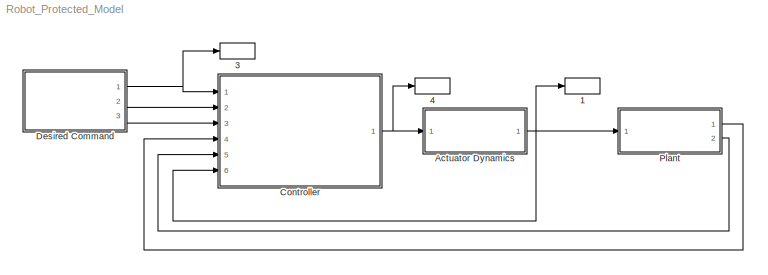
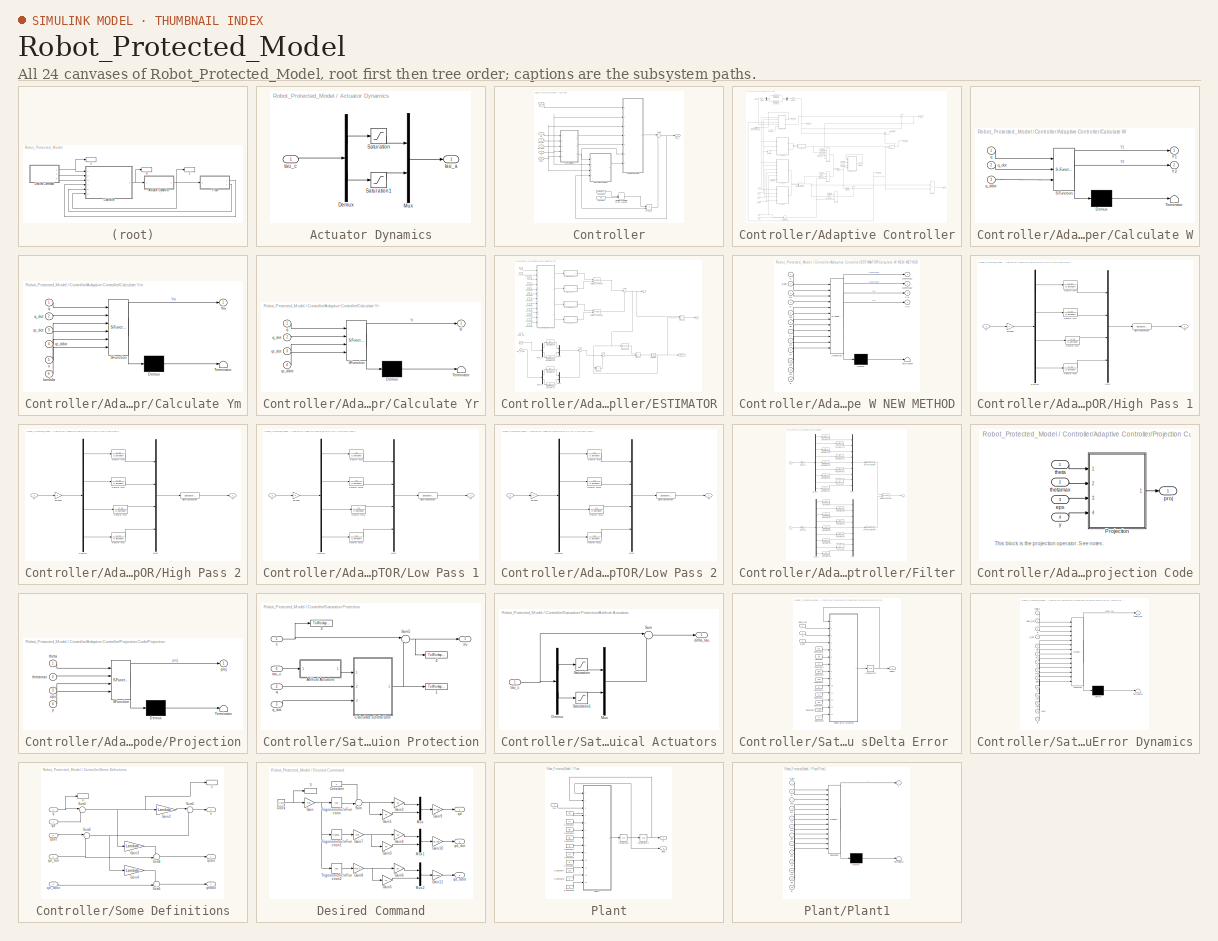
[diagram: thumbnail index - all 24 canvases of the model, root first then tree order]
MODEL Robot_Protected_Model
KIND model
BLOCK [ToWorkspace] 1
  MaxDataPoints = inf
  Ports = [1]
  SID = 77
  SampleTime = -1
  SaveFormat = Structure With Time
  VariableName = taua
BLOCK [ToWorkspace] 3
  MaxDataPoints = inf
  Ports = [1]
  SID = 99
  SampleTime = -1
  SaveFormat = Structure With Time
  VariableName = qd
BLOCK [ToWorkspace] 4
  MaxDataPoints = inf
  Ports = [1]
  SID = 100
  SampleTime = -1
  SaveFormat = Structure With Time
  VariableName = tauc
BLOCK [SubSystem] Actuator Dynamics
  FunctionWithSeparateData = off
  MaskHideContents = off
  MinAlgLoopOccurrences = off
  Opaque = off
  Ports = [1, 1]
  PropExecContextOutsideSubsystem = off
  RTWSystemCode = Auto
  RequestExecContextInheritance = off
  SID = 102
BLOCK [Demux] Actuator Dynamics/Demux
  DisplayOption = bar
  Outputs = 2
  Ports = [1, 2]
  SID = 104
BLOCK [Mux] Actuator Dynamics/Mux
  DisplayOption = bar
  Inputs = 2
  Ports = [2, 1]
  SID = 105
BLOCK [Saturate] Actuator Dynamics/Saturation
  InputPortMap = u0
  LowerLimit = -tau1lim
  Ports = [1, 1]
  SID = 106
  UpperLimit = tau1lim
  ZeroCross = off
BLOCK [Saturate] Actuator Dynamics/Saturation1
  InputPortMap = u0
  LowerLimit = -tau2lim
  Ports = [1, 1]
  SID = 107
  UpperLimit = tau2lim
  ZeroCross = off
BLOCK [Outport] Actuator Dynamics/tau_a
  IconDisplay = Port number
  SID = 108
BLOCK [Inport] Actuator Dynamics/tau_c
  IconDisplay = Port number
  SID = 103
BLOCK [SubSystem] Controller
  FunctionWithSeparateData = off
  MaskHideContents = off
  MinAlgLoopOccurrences = off
  Opaque = off
  Ports = [6, 1]
  PropExecContextOutsideSubsystem = off
  RTWSystemCode = Auto
  RequestExecContextInheritance = off
  SID = 82
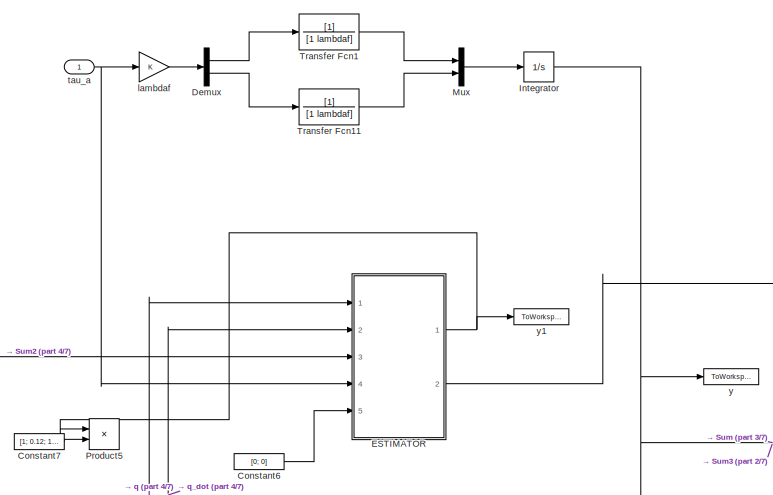
[diagram: Controller/Adaptive Controller - part 1/7, top left region]
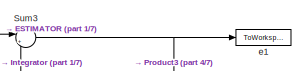
[diagram: Controller/Adaptive Controller - part 2/7, top right region]
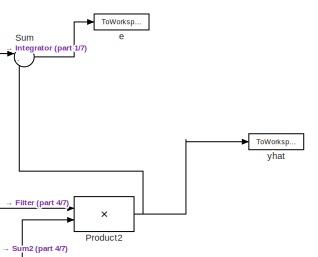
[diagram: Controller/Adaptive Controller - part 3/7, middle right region]
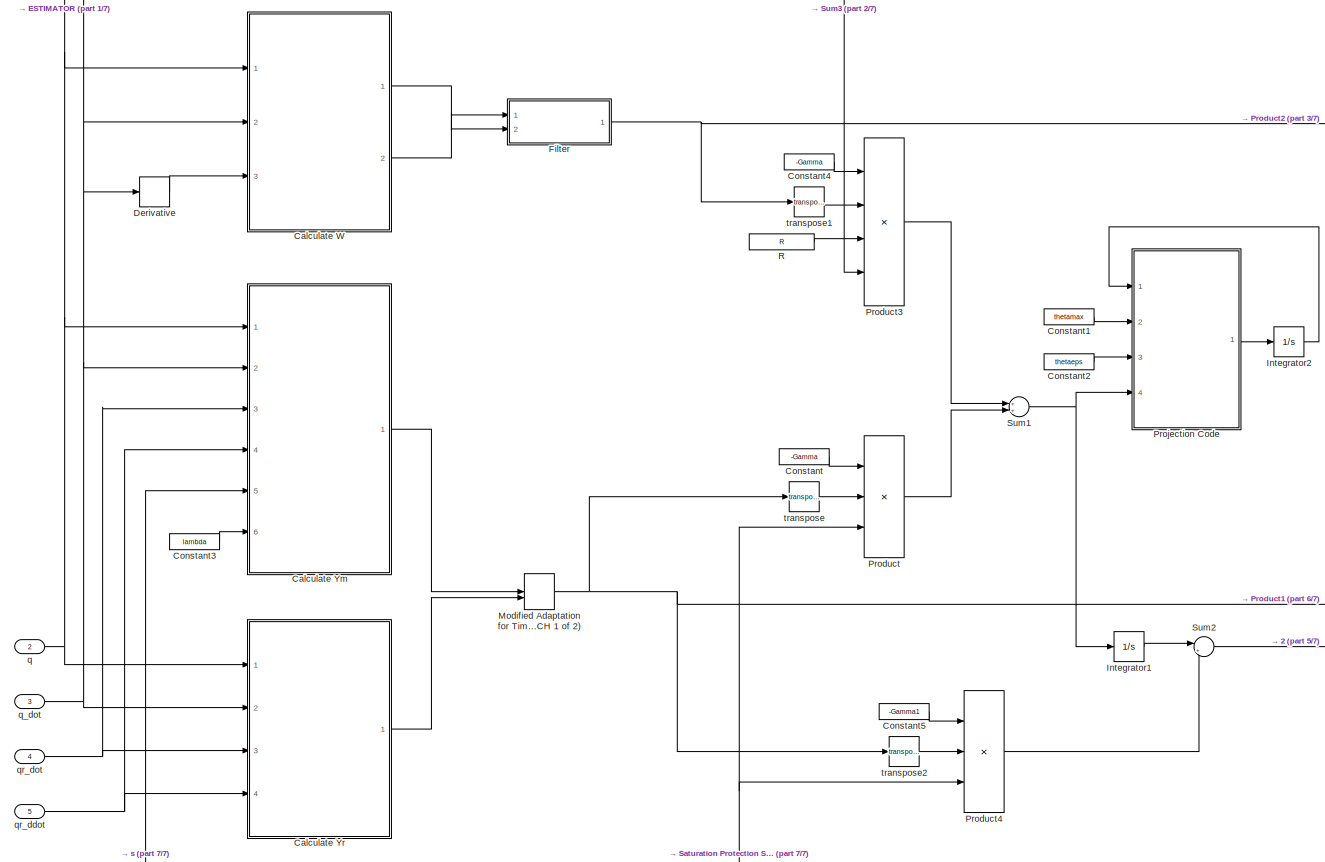
[diagram: Controller/Adaptive Controller - part 4/7, middle left region]
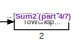
[diagram: Controller/Adaptive Controller - part 5/7, central region]
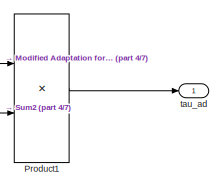
[diagram: Controller/Adaptive Controller - part 6/7, bottom right region]
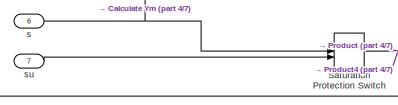
[diagram: Controller/Adaptive Controller - part 7/7, bottom left region]
BLOCK [SubSystem] Controller/Adaptive Controller
  FunctionWithSeparateData = off
  MaskHideContents = off
  MinAlgLoopOccurrences = off
  Opaque = off
  Ports = [7, 1]
  PropExecContextOutsideSubsystem = off
  RTWSystemCode = Auto
  RequestExecContextInheritance = off
  SID = 168
BLOCK [ToWorkspace] Controller/Adaptive Controller/2
  MaxDataPoints = inf
  Ports = [1]
  SID = 98
  SampleTime = -1
  SaveFormat = Structure With Time
  VariableName = theta_hat
BLOCK [SubSystem] Controller/Adaptive Controller/Calculate W
  ErrorFcn = Stateflow.Translate.translate
  FunctionWithSeparateData = off
  MaskHideContents = off
  MinAlgLoopOccurrences = off
  Opaque = off
  PermitHierarchicalResolution = ExplicitOnly
  Ports = [3, 2]
  PropExecContextOutsideSubsystem = off
  RTWSystemCode = Auto
  RequestExecContextInheritance = off
  SFBlockType = MATLAB Function
  SID = 196
  TreatAsAtomicUnit = on
BLOCK [Demux] Controller/Adaptive Controller/Calculate W/ Demux 
  Outputs = 1
  Ports = [1, 1]
  SID = 196::27
BLOCK [S-Function] Controller/Adaptive Controller/Calculate W/ SFunction 
  EnableBusSupport = on
  FunctionName = sf_sfun
  PortCounts = [3 3]
  Ports = [3, 3]
  SID = 196::26
  Tag = Stateflow S-Function Robot_Protected_Model 7
BLOCK [Terminator] Controller/Adaptive Controller/Calculate W/ Terminator 
  SID = 196::29
BLOCK [Outport] Controller/Adaptive Controller/Calculate W/Y1
  IconDisplay = Port number
  SID = 196::5
BLOCK [Outport] Controller/Adaptive Controller/Calculate W/Y2
  IconDisplay = Port number
  Port = 2
  SID = 196::31
BLOCK [Inport] Controller/Adaptive Controller/Calculate W/q
  IconDisplay = Port number
  SID = 196::1
BLOCK [Inport] Controller/Adaptive Controller/Calculate W/q_ddot
  IconDisplay = Port number
  Port = 3
  SID = 196::30
BLOCK [Inport] Controller/Adaptive Controller/Calculate W/q_dot
  IconDisplay = Port number
  Port = 2
  SID = 196::18
BLOCK [SubSystem] Controller/Adaptive Controller/Calculate Ym
  ErrorFcn = Stateflow.Translate.translate
  FunctionWithSeparateData = off
  MaskHideContents = off
  MinAlgLoopOccurrences = off
  Opaque = off
  PermitHierarchicalResolution = ExplicitOnly
  Ports = [6, 1]
  PropExecContextOutsideSubsystem = off
  RTWSystemCode = Auto
  RequestExecContextInheritance = off
  SFBlockType = MATLAB Function
  SID = 185
  TreatAsAtomicUnit = on
BLOCK [Demux] Controller/Adaptive Controller/Calculate Ym/ Demux 
  Outputs = 1
  Ports = [1, 1]
  SID = 185::27
BLOCK [S-Function] Controller/Adaptive Controller/Calculate Ym/ SFunction 
  EnableBusSupport = on
  FunctionName = sf_sfun
  PortCounts = [6 2]
  Ports = [6, 2]
  SID = 185::26
  Tag = Stateflow S-Function Robot_Protected_Model 5
BLOCK [Terminator] Controller/Adaptive Controller/Calculate Ym/ Terminator 
  SID = 185::29
BLOCK [Outport] Controller/Adaptive Controller/Calculate Ym/Ym
  IconDisplay = Port number
  SID = 185::5
BLOCK [Inport] Controller/Adaptive Controller/Calculate Ym/lambda
  IconDisplay = Port number
  Port = 6
  SID = 185::31
BLOCK [Inport] Controller/Adaptive Controller/Calculate Ym/q
  IconDisplay = Port number
  SID = 185::1
BLOCK [Inport] Controller/Adaptive Controller/Calculate Ym/q_dot
  IconDisplay = Port number
  Port = 2
  SID = 185::18
BLOCK [Inport] Controller/Adaptive Controller/Calculate Ym/qr_ddot
  IconDisplay = Port number
  Port = 4
  SID = 185::21
BLOCK [Inport] Controller/Adaptive Controller/Calculate Ym/qr_dot
  IconDisplay = Port number
  Port = 3
  SID = 185::20
BLOCK [Inport] Controller/Adaptive Controller/Calculate Ym/s
  IconDisplay = Port number
  Port = 5
  SID = 185::30
BLOCK [SubSystem] Controller/Adaptive Controller/Calculate Yr
  ErrorFcn = Stateflow.Translate.translate
  FunctionWithSeparateData = off
  MaskHideContents = off
  MinAlgLoopOccurrences = off
  Opaque = off
  PermitHierarchicalResolution = ExplicitOnly
  Ports = [4, 1]
  PropExecContextOutsideSubsystem = off
  RTWSystemCode = Auto
  RequestExecContextInheritance = off
  SFBlockType = MATLAB Function
  SID = 13
  TreatAsAtomicUnit = on
BLOCK [Demux] Controller/Adaptive Controller/Calculate Yr/ Demux 
  Outputs = 1
  Ports = [1, 1]
  SID = 13::27
BLOCK [S-Function] Controller/Adaptive Controller/Calculate Yr/ SFunction 
  EnableBusSupport = on
  FunctionName = sf_sfun
  PortCounts = [4 2]
  Ports = [4, 2]
  SID = 13::26
  Tag = Stateflow S-Function Robot_Protected_Model 1
BLOCK [Terminator] Controller/Adaptive Controller/Calculate Yr/ Terminator 
  SID = 13::29
BLOCK [Outport] Controller/Adaptive Controller/Calculate Yr/Yr
  IconDisplay = Port number
  SID = 13::5
BLOCK [Inport] Controller/Adaptive Controller/Calculate Yr/q
  IconDisplay = Port number
  SID = 13::1
BLOCK [Inport] Controller/Adaptive Controller/Calculate Yr/q_dot
  IconDisplay = Port number
  Port = 2
  SID = 13::18
BLOCK [Inport] Controller/Adaptive Controller/Calculate Yr/qr_ddot
  IconDisplay = Port number
  Port = 4
  SID = 13::21
BLOCK [Inport] Controller/Adaptive Controller/Calculate Yr/qr_dot
  IconDisplay = Port number
  Port = 3
  SID = 13::20
BLOCK [Constant] Controller/Adaptive Controller/Constant
  SID = 46
  Value = -Gamma
BLOCK [Constant] Controller/Adaptive Controller/Constant1
  SID = 160
  Value = thetamax
BLOCK [Constant] Controller/Adaptive Controller/Constant2
  SID = 161
  Value = thetaeps
BLOCK [Constant] Controller/Adaptive Controller/Constant3
  SID = 186
  Value = lambda
BLOCK [Constant] Controller/Adaptive Controller/Constant4
  SID = 240
  Value = -Gamma
BLOCK [Constant] Controller/Adaptive Controller/Constant5
  SID = 248
  Value = -Gamma1
BLOCK [Constant] Controller/Adaptive Controller/Constant6
  SID = 413
  Value = [0; 0]
BLOCK [Constant] Controller/Adaptive Controller/Constant7
  SID = 416
  Value = [1; 0.12; 1; 1]
BLOCK [Demux] Controller/Adaptive Controller/Demux
  DisplayOption = bar
  Outputs = 2
  Ports = [1, 2]
  SID = 233
BLOCK [Derivative] Controller/Adaptive Controller/Derivative
  SID = 197
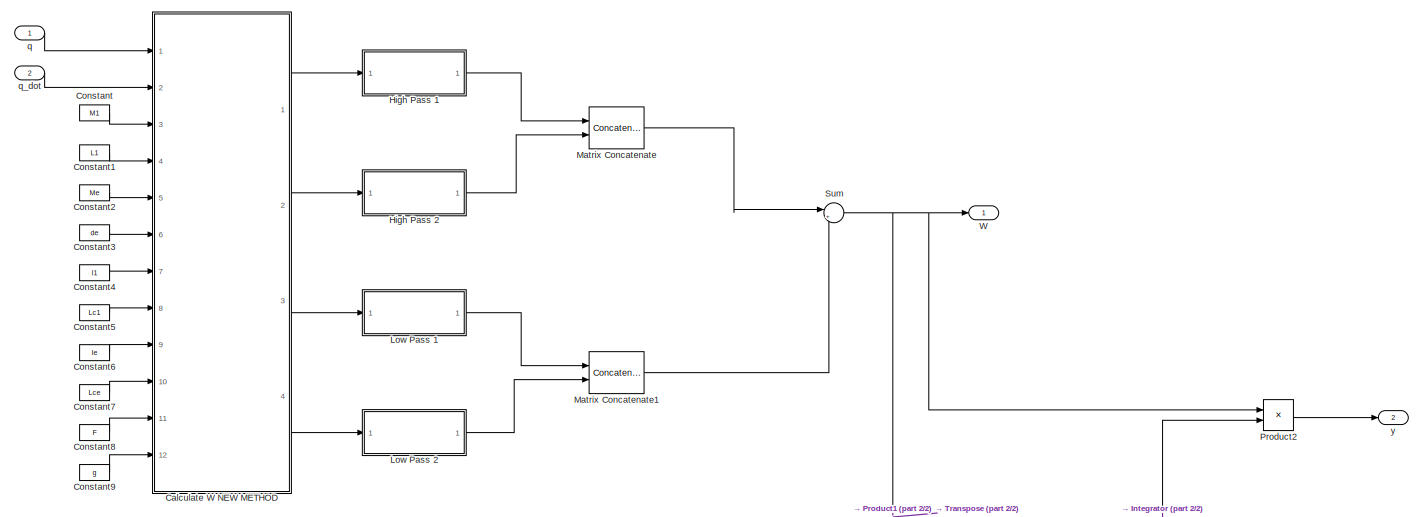
[diagram: Controller/Adaptive Controller/ESTIMATOR - part 1/2, full width, top band]
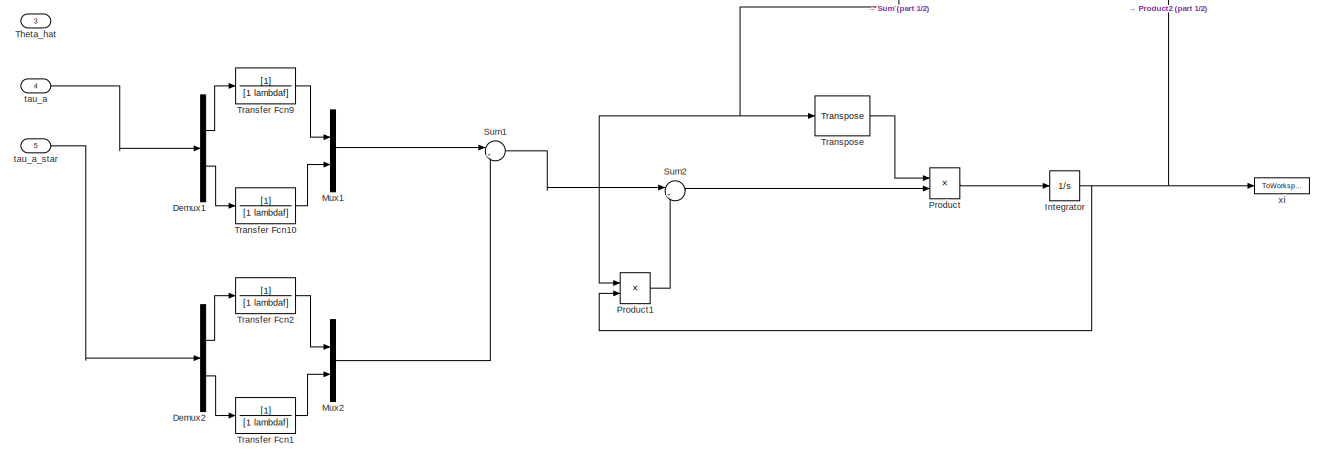
[diagram: Controller/Adaptive Controller/ESTIMATOR - part 2/2, full width, bottom band]
BLOCK [SubSystem] Controller/Adaptive Controller/ESTIMATOR
  FunctionWithSeparateData = off
  MaskHideContents = off
  MinAlgLoopOccurrences = off
  Opaque = off
  Ports = [5, 2]
  PropExecContextOutsideSubsystem = off
  RTWSystemCode = Auto
  RequestExecContextInheritance = off
  SID = 263
BLOCK [SubSystem] Controller/Adaptive Controller/ESTIMATOR/Calculate W NEW METHOD
  ErrorFcn = Stateflow.Translate.translate
  FunctionWithSeparateData = off
  MaskHideContents = off
  MinAlgLoopOccurrences = off
  Opaque = off
  PermitHierarchicalResolution = ExplicitOnly
  Ports = [12, 4]
  PropExecContextOutsideSubsystem = off
  RTWSystemCode = Auto
  RequestExecContextInheritance = off
  SFBlockType = MATLAB Function
  SID = 262
  TreatAsAtomicUnit = on
BLOCK [Demux] Controller/Adaptive Controller/ESTIMATOR/Calculate W NEW METHOD/ Demux 
  Outputs = 1
  Ports = [1, 1]
  SID = 262::27
BLOCK [S-Function] Controller/Adaptive Controller/ESTIMATOR/Calculate W NEW METHOD/ SFunction 
  EnableBusSupport = on
  FunctionName = sf_sfun
  PortCounts = [12 5]
  Ports = [12, 5]
  SID = 262::26
  Tag = Stateflow S-Function Robot_Protected_Model 6
BLOCK [Terminator] Controller/Adaptive Controller/ESTIMATOR/Calculate W NEW METHOD/ Terminator 
  SID = 262::29
BLOCK [Inport] Controller/Adaptive Controller/ESTIMATOR/Calculate W NEW METHOD/Fd
  IconDisplay = Port number
  Port = 11
  SID = 262::43
BLOCK [Outport] Controller/Adaptive Controller/ESTIMATOR/Calculate W NEW METHOD/Gammaz1
  IconDisplay = Port number
  SID = 262::5
BLOCK [Outport] Controller/Adaptive Controller/ESTIMATOR/Calculate W NEW METHOD/Gammaz2
  IconDisplay = Port number
  Port = 2
  SID = 262::31
BLOCK [Inport] Controller/Adaptive Controller/ESTIMATOR/Calculate W NEW METHOD/I1
  IconDisplay = Port number
  Port = 7
  SID = 262::39
BLOCK [Inport] Controller/Adaptive Controller/ESTIMATOR/Calculate W NEW METHOD/Ie
  IconDisplay = Port number
  Port = 9
  SID = 262::41
BLOCK [Inport] Controller/Adaptive Controller/ESTIMATOR/Calculate W NEW METHOD/L1
  IconDisplay = Port number
  Port = 4
  SID = 262::36
BLOCK [Inport] Controller/Adaptive Controller/ESTIMATOR/Calculate W NEW METHOD/Lc1
  IconDisplay = Port number
  Port = 8
  SID = 262::40
BLOCK [Inport] Controller/Adaptive Controller/ESTIMATOR/Calculate W NEW METHOD/Lce
  IconDisplay = Port number
  Port = 10
  SID = 262::42
BLOCK [Inport] Controller/Adaptive Controller/ESTIMATOR/Calculate W NEW METHOD/M1
  IconDisplay = Port number
  Port = 3
  SID = 262::35
BLOCK [Inport] Controller/Adaptive Controller/ESTIMATOR/Calculate W NEW METHOD/Me
  IconDisplay = Port number
  Port = 5
  SID = 262::37
BLOCK [Outport] Controller/Adaptive Controller/ESTIMATOR/Calculate W NEW METHOD/XI1
  IconDisplay = Port number
  Port = 3
  SID = 262::32
BLOCK [Outport] Controller/Adaptive Controller/ESTIMATOR/Calculate W NEW METHOD/XI2
  IconDisplay = Port number
  Port = 4
  SID = 262::45
BLOCK [Inport] Controller/Adaptive Controller/ESTIMATOR/Calculate W NEW METHOD/de
  IconDisplay = Port number
  Port = 6
  SID = 262::38
BLOCK [Inport] Controller/Adaptive Controller/ESTIMATOR/Calculate W NEW METHOD/g
  IconDisplay = Port number
  Port = 12
  SID = 262::44
BLOCK [Inport] Controller/Adaptive Controller/ESTIMATOR/Calculate W NEW METHOD/q
  IconDisplay = Port number
  SID = 262::1
BLOCK [Inport] Controller/Adaptive Controller/ESTIMATOR/Calculate W NEW METHOD/q_dot
  IconDisplay = Port number
  Port = 2
  SID = 262::18
BLOCK [Constant] Controller/Adaptive Controller/ESTIMATOR/Constant
  SID = 266
  Value = M1
BLOCK [Constant] Controller/Adaptive Controller/ESTIMATOR/Constant1
  SID = 267
  Value = L1
BLOCK [Constant] Controller/Adaptive Controller/ESTIMATOR/Constant2
  SID = 268
  Value = Me
BLOCK [Constant] Controller/Adaptive Controller/ESTIMATOR/Constant3
  SID = 269
  Value = de
BLOCK [Constant] Controller/Adaptive Controller/ESTIMATOR/Constant4
  SID = 270
  Value = I1
BLOCK [Constant] Controller/Adaptive Controller/ESTIMATOR/Constant5
  SID = 271
  Value = Lc1
BLOCK [Constant] Controller/Adaptive Controller/ESTIMATOR/Constant6
  SID = 272
  Value = Ie
BLOCK [Constant] Controller/Adaptive Controller/ESTIMATOR/Constant7
  SID = 273
  Value = Lce
BLOCK [Constant] Controller/Adaptive Controller/ESTIMATOR/Constant8
  SID = 274
  Value = F
BLOCK [Constant] Controller/Adaptive Controller/ESTIMATOR/Constant9
  SID = 275
  Value = g
BLOCK [Demux] Controller/Adaptive Controller/ESTIMATOR/Demux1
  DisplayOption = bar
  Outputs = 2
  Ports = [1, 2]
  SID = 398
BLOCK [Demux] Controller/Adaptive Controller/ESTIMATOR/Demux2
  DisplayOption = bar
  Outputs = 2
  Ports = [1, 2]
  SID = 402
BLOCK [SubSystem] Controller/Adaptive Controller/ESTIMATOR/High Pass 1
  FunctionWithSeparateData = off
  MaskHideContents = off
  MinAlgLoopOccurrences = off
  Opaque = off
  Ports = [1, 1]
  PropExecContextOutsideSubsystem = off
  RTWSystemCode = Auto
  RequestExecContextInheritance = off
  SID = 345
BLOCK [Demux] Controller/Adaptive Controller/ESTIMATOR/High Pass 1/Demux1
  DisplayOption = bar
  Ports = [1, 4]
  SID = 347
BLOCK [Mux] Controller/Adaptive Controller/ESTIMATOR/High Pass 1/Mux1
  DisplayOption = bar
  Ports = [4, 1]
  SID = 348
BLOCK [SignalSpecification] Controller/Adaptive Controller/ESTIMATOR/High Pass 1/Signal Specification
  Dimensions = [1,4]
  SID = 349
BLOCK [TransferFcn] Controller/Adaptive Controller/ESTIMATOR/High Pass 1/Transfer Fcn1
  Denominator = [1 lambdaf]
  Numerator = [1 0]
  SID = 378
BLOCK [TransferFcn] Controller/Adaptive Controller/ESTIMATOR/High Pass 1/Transfer Fcn2
  Denominator = [1 lambdaf]
  Numerator = [1 0]
  SID = 379
BLOCK [TransferFcn] Controller/Adaptive Controller/ESTIMATOR/High Pass 1/Transfer Fcn3
  Denominator = [1 lambdaf]
  Numerator = [1 0]
  SID = 380
BLOCK [TransferFcn] Controller/Adaptive Controller/ESTIMATOR/High Pass 1/Transfer Fcn9
  Denominator = [1 lambdaf]
  Numerator = [1 0]
  SID = 353
BLOCK [Outport] Controller/Adaptive Controller/ESTIMATOR/High Pass 1/W
  IconDisplay = Port number
  SID = 355
BLOCK [Inport] Controller/Adaptive Controller/ESTIMATOR/High Pass 1/Y1
  IconDisplay = Port number
  SID = 346
BLOCK [Gain] Controller/Adaptive Controller/ESTIMATOR/High Pass 1/lambdaf
  OutDataTypeStr = Inherit: Inherit via internal rule
  ParamDataTypeStr = Inherit: Inherit via internal rule
  SID = 354
  SaturateOnIntegerOverflow = off
BLOCK [SubSystem] Controller/Adaptive Controller/ESTIMATOR/High Pass 2
  FunctionWithSeparateData = off
  MaskHideContents = off
  MinAlgLoopOccurrences = off
  Opaque = off
  Ports = [1, 1]
  PropExecContextOutsideSubsystem = off
  RTWSystemCode = Auto
  RequestExecContextInheritance = off
  SID = 381
BLOCK [Demux] Controller/Adaptive Controller/ESTIMATOR/High Pass 2/Demux1
  DisplayOption = bar
  Ports = [1, 4]
  SID = 383
BLOCK [Mux] Controller/Adaptive Controller/ESTIMATOR/High Pass 2/Mux1
  DisplayOption = bar
  Ports = [4, 1]
  SID = 384
BLOCK [SignalSpecification] Controller/Adaptive Controller/ESTIMATOR/High Pass 2/Signal Specification
  Dimensions = [1,4]
  SID = 385
BLOCK [TransferFcn] Controller/Adaptive Controller/ESTIMATOR/High Pass 2/Transfer Fcn1
  Denominator = [1 lambdaf]
  Numerator = [1 0]
  SID = 386
BLOCK [TransferFcn] Controller/Adaptive Controller/ESTIMATOR/High Pass 2/Transfer Fcn2
  Denominator = [1 lambdaf]
  Numerator = [1 0]
  SID = 387
BLOCK [TransferFcn] Controller/Adaptive Controller/ESTIMATOR/High Pass 2/Transfer Fcn3
  Denominator = [1 lambdaf]
  Numerator = [1 0]
  SID = 388
BLOCK [TransferFcn] Controller/Adaptive Controller/ESTIMATOR/High Pass 2/Transfer Fcn9
  Denominator = [1 lambdaf]
  Numerator = [1 0]
  SID = 389
BLOCK [Outport] Controller/Adaptive Controller/ESTIMATOR/High Pass 2/W
  IconDisplay = Port number
  SID = 391
BLOCK [Inport] Controller/Adaptive Controller/ESTIMATOR/High Pass 2/Y1
  IconDisplay = Port number
  SID = 382
BLOCK [Gain] Controller/Adaptive Controller/ESTIMATOR/High Pass 2/lambdaf
  OutDataTypeStr = Inherit: Inherit via internal rule
  ParamDataTypeStr = Inherit: Inherit via internal rule
  SID = 390
  SaturateOnIntegerOverflow = off
BLOCK [Integrator] Controller/Adaptive Controller/ESTIMATOR/Integrator
  InitialCondition = [0; 0; 0; 0]
  Ports = [1, 1]
  SID = 407
BLOCK [SubSystem] Controller/Adaptive Controller/ESTIMATOR/Low Pass 1
  FunctionWithSeparateData = off
  MaskHideContents = off
  MinAlgLoopOccurrences = off
  Opaque = off
  Ports = [1, 1]
  PropExecContextOutsideSubsystem = off
  RTWSystemCode = Auto
  RequestExecContextInheritance = off
  SID = 277
BLOCK [Demux] Controller/Adaptive Controller/ESTIMATOR/Low Pass 1/Demux1
  DisplayOption = bar
  Ports = [1, 4]
  SID = 281
BLOCK [Mux] Controller/Adaptive Controller/ESTIMATOR/Low Pass 1/Mux1
  DisplayOption = bar
  Ports = [4, 1]
  SID = 284
BLOCK [SignalSpecification] Controller/Adaptive Controller/ESTIMATOR/Low Pass 1/Signal Specification
  Dimensions = [1,4]
  SID = 285
BLOCK [TransferFcn] Controller/Adaptive Controller/ESTIMATOR/Low Pass 1/Transfer Fcn10
  Denominator = [1 lambdaf]
  SID = 289
BLOCK [TransferFcn] Controller/Adaptive Controller/ESTIMATOR/Low Pass 1/Transfer Fcn11
  Denominator = [1 lambdaf]
  SID = 290
BLOCK [TransferFcn] Controller/Adaptive Controller/ESTIMATOR/Low Pass 1/Transfer Fcn12
  Denominator = [1 lambdaf]
  SID = 291
BLOCK [TransferFcn] Controller/Adaptive Controller/ESTIMATOR/Low Pass 1/Transfer Fcn9
  Denominator = [1 lambdaf]
  SID = 304
BLOCK [Outport] Controller/Adaptive Controller/ESTIMATOR/Low Pass 1/W
  IconDisplay = Port number
  SID = 307
BLOCK [Inport] Controller/Adaptive Controller/ESTIMATOR/Low Pass 1/Y1
  IconDisplay = Port number
  SID = 278
BLOCK [Gain] Controller/Adaptive Controller/ESTIMATOR/Low Pass 1/lambdaf
  OutDataTypeStr = Inherit: Inherit via internal rule
  ParamDataTypeStr = Inherit: Inherit via internal rule
  SID = 305
  SaturateOnIntegerOverflow = off
BLOCK [SubSystem] Controller/Adaptive Controller/ESTIMATOR/Low Pass 2
  FunctionWithSeparateData = off
  MaskHideContents = off
  MinAlgLoopOccurrences = off
  Opaque = off
  Ports = [1, 1]
  PropExecContextOutsideSubsystem = off
  RTWSystemCode = Auto
  RequestExecContextInheritance = off
  SID = 334
BLOCK [Demux] Controller/Adaptive Controller/ESTIMATOR/Low Pass 2/Demux1
  DisplayOption = bar
  Ports = [1, 4]
  SID = 336
BLOCK [Mux] Controller/Adaptive Controller/ESTIMATOR/Low Pass 2/Mux1
  DisplayOption = bar
  Ports = [4, 1]
  SID = 337
BLOCK [SignalSpecification] Controller/Adaptive Controller/ESTIMATOR/Low Pass 2/Signal Specification
  Dimensions = [1,4]
  SID = 338
BLOCK [TransferFcn] Controller/Adaptive Controller/ESTIMATOR/Low Pass 2/Transfer Fcn10
  Denominator = [1 lambdaf]
  SID = 339
BLOCK [TransferFcn] Controller/Adaptive Controller/ESTIMATOR/Low Pass 2/Transfer Fcn11
  Denominator = [1 lambdaf]
  SID = 340
BLOCK [TransferFcn] Controller/Adaptive Controller/ESTIMATOR/Low Pass 2/Transfer Fcn12
  Denominator = [1 lambdaf]
  SID = 341
BLOCK [TransferFcn] Controller/Adaptive Controller/ESTIMATOR/Low Pass 2/Transfer Fcn9
  Denominator = [1 lambdaf]
  SID = 342
BLOCK [Outport] Controller/Adaptive Controller/ESTIMATOR/Low Pass 2/W
  IconDisplay = Port number
  SID = 344
BLOCK [Inport] Controller/Adaptive Controller/ESTIMATOR/Low Pass 2/Y1
  IconDisplay = Port number
  SID = 335
BLOCK [Gain] Controller/Adaptive Controller/ESTIMATOR/Low Pass 2/lambdaf
  OutDataTypeStr = Inherit: Inherit via internal rule
  ParamDataTypeStr = Inherit: Inherit via internal rule
  SID = 343
  SaturateOnIntegerOverflow = off
BLOCK [Concatenate] Controller/Adaptive Controller/ESTIMATOR/Matrix Concatenate
  Mode = Multidimensional array
  Ports = [2, 1]
  SID = 282
BLOCK [Concatenate] Controller/Adaptive Controller/ESTIMATOR/Matrix Concatenate1
  Mode = Multidimensional array
  Ports = [2, 1]
  SID = 392
BLOCK [Mux] Controller/Adaptive Controller/ESTIMATOR/Mux1
  DisplayOption = bar
  Inputs = 2
  Ports = [2, 1]
  SID = 399
BLOCK [Mux] Controller/Adaptive Controller/ESTIMATOR/Mux2
  DisplayOption = bar
  Inputs = 2
  Ports = [2, 1]
  SID = 403
BLOCK [Product] Controller/Adaptive Controller/ESTIMATOR/Product
  InputSameDT = off
  Multiplication = Matrix(*)
  OutDataTypeStr = Inherit: Inherit via internal rule
  Ports = [2, 1]
  SID = 409
  SaturateOnIntegerOverflow = off
BLOCK [Product] Controller/Adaptive Controller/ESTIMATOR/Product1
  InputSameDT = off
  Multiplication = Matrix(*)
  OutDataTypeStr = Inherit: Inherit via internal rule
  Ports = [2, 1]
  SID = 410
  SaturateOnIntegerOverflow = off
BLOCK [Product] Controller/Adaptive Controller/ESTIMATOR/Product2
  InputSameDT = off
  Multiplication = Matrix(*)
  OutDataTypeStr = Inherit: Inherit via internal rule
  Ports = [2, 1]
  SID = 417
  SaturateOnIntegerOverflow = off
BLOCK [Sum] Controller/Adaptive Controller/ESTIMATOR/Sum
  IconShape = round
  InputSameDT = off
  Inputs = |+-
  OutDataTypeStr = Inherit: Inherit via internal rule
  Ports = [2, 1]
  SID = 393
  SaturateOnIntegerOverflow = off
BLOCK [Sum] Controller/Adaptive Controller/ESTIMATOR/Sum1
  IconShape = round
  InputSameDT = off
  Inputs = |+-
  OutDataTypeStr = Inherit: Inherit via internal rule
  Ports = [2, 1]
  SID = 406
  SaturateOnIntegerOverflow = off
BLOCK [Sum] Controller/Adaptive Controller/ESTIMATOR/Sum2
  IconShape = round
  InputSameDT = off
  Inputs = |+-
  OutDataTypeStr = Inherit: Inherit via internal rule
  Ports = [2, 1]
  SID = 411
  SaturateOnIntegerOverflow = off
BLOCK [Inport] Controller/Adaptive Controller/ESTIMATOR/Theta_hat
  IconDisplay = Port number
  Port = 3
  SID = 395
BLOCK [TransferFcn] Controller/Adaptive Controller/ESTIMATOR/Transfer Fcn1
  Denominator = [1 lambdaf]
  SID = 404
BLOCK [TransferFcn] Controller/Adaptive Controller/ESTIMATOR/Transfer Fcn10
  Denominator = [1 lambdaf]
  SID = 400
BLOCK [TransferFcn] Controller/Adaptive Controller/ESTIMATOR/Transfer Fcn2
  Denominator = [1 lambdaf]
  SID = 405
BLOCK [TransferFcn] Controller/Adaptive Controller/ESTIMATOR/Transfer Fcn9
  Denominator = [1 lambdaf]
  SID = 401
BLOCK [Reference] Controller/Adaptive Controller/ESTIMATOR/Transpose  REF=dspmtrx3/Transpose
  Hermitian = off
  Ports = [1, 1]
  SID = 408
  SourceBlock = dspmtrx3/Transpose
  SourceType = Transpose
  overflowFlag = off
BLOCK [Outport] Controller/Adaptive Controller/ESTIMATOR/W
  IconDisplay = Port number
  SID = 265
BLOCK [Inport] Controller/Adaptive Controller/ESTIMATOR/q
  IconDisplay = Port number
  SID = 264
BLOCK [Inport] Controller/Adaptive Controller/ESTIMATOR/q_dot
  IconDisplay = Port number
  Port = 2
  SID = 276
BLOCK [Inport] Controller/Adaptive Controller/ESTIMATOR/tau_a
  IconDisplay = Port number
  Port = 4
  SID = 396
BLOCK [Inport] Controller/Adaptive Controller/ESTIMATOR/tau_a_star
  IconDisplay = Port number
  Port = 5
  SID = 397
BLOCK [ToWorkspace] Controller/Adaptive Controller/ESTIMATOR/xi
  MaxDataPoints = inf
  Ports = [1]
  SID = 412
  SampleTime = -1
  SaveFormat = Structure With Time
  VariableName = xi
BLOCK [Outport] Controller/Adaptive Controller/ESTIMATOR/y
  IconDisplay = Port number
  Port = 2
  SID = 418
BLOCK [SubSystem] Controller/Adaptive Controller/Filter
  FunctionWithSeparateData = off
  MaskHideContents = off
  MinAlgLoopOccurrences = off
  Opaque = off
  Ports = [2, 1]
  PropExecContextOutsideSubsystem = off
  RTWSystemCode = Auto
  RequestExecContextInheritance = off
  SID = 199
BLOCK [Demux] Controller/Adaptive Controller/Filter/Demux
  DisplayOption = bar
  Outputs = 9
  Ports = [1, 9]
  SID = 203
BLOCK [Demux] Controller/Adaptive Controller/Filter/Demux1
  DisplayOption = bar
  Outputs = 9
  Ports = [1, 9]
  SID = 213
BLOCK [Concatenate] Controller/Adaptive Controller/Filter/Matrix Concatenate
  Mode = Multidimensional array
  Ports = [2, 1]
  SID = 224
BLOCK [Mux] Controller/Adaptive Controller/Filter/Mux
  DisplayOption = bar
  Inputs = 9
  Ports = [9, 1]
  SID = 202
BLOCK [Mux] Controller/Adaptive Controller/Filter/Mux1
  DisplayOption = bar
  Inputs = 9
  Ports = [9, 1]
  SID = 214
BLOCK [SignalSpecification] Controller/Adaptive Controller/Filter/Signal Specification
  Dimensions = [1,9]
  SID = 225
BLOCK [SignalSpecification] Controller/Adaptive Controller/Filter/Signal Specification1
  Dimensions = [1,9]
  SID = 226
BLOCK [TransferFcn] Controller/Adaptive Controller/Filter/Transfer Fcn
  Denominator = [1 lambdaf]
  SID = 198
BLOCK [TransferFcn] Controller/Adaptive Controller/Filter/Transfer Fcn1
  Denominator = [1 lambdaf]
  SID = 205
BLOCK [TransferFcn] Controller/Adaptive Controller/Filter/Transfer Fcn10
  Denominator = [1 lambdaf]
  SID = 216
BLOCK [TransferFcn] Controller/Adaptive Controller/Filter/Transfer Fcn11
  Denominator = [1 lambdaf]
  SID = 217
BLOCK [TransferFcn] Controller/Adaptive Controller/Filter/Transfer Fcn12
  Denominator = [1 lambdaf]
  SID = 218
BLOCK [TransferFcn] Controller/Adaptive Controller/Filter/Transfer Fcn13
  Denominator = [1 lambdaf]
  SID = 219
BLOCK [TransferFcn] Controller/Adaptive Controller/Filter/Transfer Fcn14
  Denominator = [1 lambdaf]
  SID = 220
BLOCK [TransferFcn] Controller/Adaptive Controller/Filter/Transfer Fcn15
  Denominator = [1 lambdaf]
  SID = 221
BLOCK [TransferFcn] Controller/Adaptive Controller/Filter/Transfer Fcn16
  Denominator = [1 lambdaf]
  SID = 222
BLOCK [TransferFcn] Controller/Adaptive Controller/Filter/Transfer Fcn17
  Denominator = [1 lambdaf]
  SID = 223
BLOCK [TransferFcn] Controller/Adaptive Controller/Filter/Transfer Fcn2
  Denominator = [1 lambdaf]
  SID = 206
BLOCK [TransferFcn] Controller/Adaptive Controller/Filter/Transfer Fcn3
  Denominator = [1 lambdaf]
  SID = 207
BLOCK [TransferFcn] Controller/Adaptive Controller/Filter/Transfer Fcn4
  Denominator = [1 lambdaf]
  SID = 208
BLOCK [TransferFcn] Controller/Adaptive Controller/Filter/Transfer Fcn5
  Denominator = [1 lambdaf]
  SID = 209
BLOCK [TransferFcn] Controller/Adaptive Controller/Filter/Transfer Fcn6
  Denominator = [1 lambdaf]
  SID = 210
BLOCK [TransferFcn] Controller/Adaptive Controller/Filter/Transfer Fcn7
  Denominator = [1 lambdaf]
  SID = 211
BLOCK [TransferFcn] Controller/Adaptive Controller/Filter/Transfer Fcn8
  Denominator = [1 lambdaf]
  SID = 212
BLOCK [TransferFcn] Controller/Adaptive Controller/Filter/Transfer Fcn9
  Denominator = [1 lambdaf]
  SID = 215
BLOCK [Outport] Controller/Adaptive Controller/Filter/W
  IconDisplay = Port number
  SID = 201
BLOCK [Inport] Controller/Adaptive Controller/Filter/Y1
  IconDisplay = Port number
  SID = 200
BLOCK [Inport] Controller/Adaptive Controller/Filter/Y2
  IconDisplay = Port number
  Port = 2
  SID = 204
BLOCK [Gain] Controller/Adaptive Controller/Filter/lambdaf
  Gain = lambdaf
  OutDataTypeStr = Inherit: Inherit via internal rule
  ParamDataTypeStr = Inherit: Inherit via internal rule
  SID = 245
  SaturateOnIntegerOverflow = off
BLOCK [Gain] Controller/Adaptive Controller/Filter/lambdaf1
  Gain = lambdaf
  OutDataTypeStr = Inherit: Inherit via internal rule
  ParamDataTypeStr = Inherit: Inherit via internal rule
  SID = 246
  SaturateOnIntegerOverflow = off
BLOCK [Integrator] Controller/Adaptive Controller/Integrator
  InitialCondition = [0; 0]
  Ports = [1, 1]
  SID = 230
BLOCK [Integrator] Controller/Adaptive Controller/Integrator1
  InitialCondition = initial_theta
  Ports = [1, 1]
  SID = 239
BLOCK [Integrator] Controller/Adaptive Controller/Integrator2
  InitialCondition = initial_theta
  Ports = [1, 1]
  SID = 49
BLOCK [ManualSwitch] Controller/Adaptive Controller/Modified Adaptation for Time Varying KD\n(SWITCH 1 of 2)
  CurrentSetting = 0
  SID = 187
BLOCK [Mux] Controller/Adaptive Controller/Mux
  DisplayOption = bar
  Inputs = 2
  Ports = [2, 1]
  SID = 232
BLOCK [Product] Controller/Adaptive Controller/Product
  InputSameDT = off
  Inputs = 3
  Multiplication = Matrix(*)
  OutDataTypeStr = Inherit: Inherit via internal rule
  Ports = [3, 1]
  SID = 47
  SaturateOnIntegerOverflow = off
BLOCK [Product] Controller/Adaptive Controller/Product1
  InputSameDT = off
  Multiplication = Matrix(*)
  OutDataTypeStr = Inherit: Inherit via internal rule
  Ports = [2, 1]
  SID = 50
  SaturateOnIntegerOverflow = off
BLOCK [Product] Controller/Adaptive Controller/Product2
  InputSameDT = off
  Multiplication = Matrix(*)
  OutDataTypeStr = Inherit: Inherit via internal rule
  Ports = [2, 1]
  SID = 234
  SaturateOnIntegerOverflow = off
BLOCK [Product] Controller/Adaptive Controller/Product3
  InputSameDT = off
  Inputs = 4
  Multiplication = Matrix(*)
  OutDataTypeStr = Inherit: Inherit via internal rule
  Ports = [4, 1]
  SID = 241
  SaturateOnIntegerOverflow = off
BLOCK [Product] Controller/Adaptive Controller/Product4
  InputSameDT = off
  Inputs = 3
  Multiplication = Matrix(*)
  OutDataTypeStr = Inherit: Inherit via internal rule
  Ports = [3, 1]
  SID = 249
  SaturateOnIntegerOverflow = off
BLOCK [Product] Controller/Adaptive Controller/Product5
  InputSameDT = off
  Multiplication = Matrix(*)
  OutDataTypeStr = Inherit: Inherit via internal rule
  Ports = [2, 1]
  SID = 415
  SaturateOnIntegerOverflow = off
BLOCK [SubSystem] Controller/Adaptive Controller/Projection Code
  FunctionWithSeparateData = off
  MaskHideContents = off
  MinAlgLoopOccurrences = off
  Opaque = off
  Ports = [4, 1]
  PropExecContextOutsideSubsystem = off
  RTWSystemCode = Auto
  RequestExecContextInheritance = off
  SID = 152
BLOCK [SubSystem] Controller/Adaptive Controller/Projection Code/Projection
  ErrorFcn = Stateflow.Translate.translate
  FunctionWithSeparateData = off
  MaskHideContents = off
  MinAlgLoopOccurrences = off
  Opaque = off
  PermitHierarchicalResolution = ExplicitOnly
  Ports = [4, 1]
  PropExecContextOutsideSubsystem = off
  RTWSystemCode = Auto
  RequestExecContextInheritance = off
  SFBlockType = MATLAB Function
  SID = 157
  TreatAsAtomicUnit = on
BLOCK [Demux] Controller/Adaptive Controller/Projection Code/Projection/ Demux 
  Outputs = 1
  Ports = [1, 1]
  SID = 157::35824
BLOCK [S-Function] Controller/Adaptive Controller/Projection Code/Projection/ SFunction 
  EnableBusSupport = on
  FunctionName = sf_sfun
  PortCounts = [4 2]
  Ports = [4, 2]
  SID = 157::35823
  Tag = Stateflow S-Function Robot_Protected_Model 3
BLOCK [Terminator] Controller/Adaptive Controller/Projection Code/Projection/ Terminator 
  SID = 157::35826
BLOCK [Inport] Controller/Adaptive Controller/Projection Code/Projection/eps
  IconDisplay = Port number
  Port = 3
  SID = 157::35648
BLOCK [Outport] Controller/Adaptive Controller/Projection Code/Projection/proj
  IconDisplay = Port number
  SID = 157::35653
BLOCK [Inport] Controller/Adaptive Controller/Projection Code/Projection/theta
  IconDisplay = Port number
  SID = 157::35646
BLOCK [Inport] Controller/Adaptive Controller/Projection Code/Projection/thetamax
  IconDisplay = Port number
  Port = 2
  SID = 157::35647
BLOCK [Inport] Controller/Adaptive Controller/Projection Code/Projection/y
  IconDisplay = Port number
  Port = 4
  SID = 157::35649
BLOCK [Inport] Controller/Adaptive Controller/Projection Code/eps
  IconDisplay = Port number
  Port = 3
  SID = 155
BLOCK [Outport] Controller/Adaptive Controller/Projection Code/proj
  IconDisplay = Port number
  SID = 158
BLOCK [Inport] Controller/Adaptive Controller/Projection Code/theta
  IconDisplay = Port number
  SID = 153
BLOCK [Inport] Controller/Adaptive Controller/Projection Code/thetamax
  IconDisplay = Port number
  Port = 2
  SID = 154
BLOCK [Inport] Controller/Adaptive Controller/Projection Code/y
  IconDisplay = Port number
  Port = 4
  SID = 156
BLOCK [Constant] Controller/Adaptive Controller/R
  SID = 243
  Value = R
BLOCK [ManualSwitch] Controller/Adaptive Controller/Saturation Protection Switch
  CurrentSetting = 0
  SID = 109
BLOCK [Sum] Controller/Adaptive Controller/Sum
  IconShape = round
  InputSameDT = off
  Inputs = |-+
  OutDataTypeStr = Inherit: Inherit via internal rule
  Ports = [2, 1]
  SID = 237
  SaturateOnIntegerOverflow = off
BLOCK [Sum] Controller/Adaptive Controller/Sum1
  InputSameDT = off
  OutDataTypeStr = Inherit: Inherit via internal rule
  Ports = [2, 1]
  SID = 244
  SaturateOnIntegerOverflow = off
BLOCK [Sum] Controller/Adaptive Controller/Sum2
  IconShape = round
  InputSameDT = off
  Inputs = |++
  OutDataTypeStr = Inherit: Inherit via internal rule
  Ports = [2, 1]
  SID = 251
  SaturateOnIntegerOverflow = off
BLOCK [Sum] Controller/Adaptive Controller/Sum3
  IconShape = round
  InputSameDT = off
  Inputs = |+-
  OutDataTypeStr = Inherit: Inherit via internal rule
  Ports = [2, 1]
  SID = 419
  SaturateOnIntegerOverflow = off
BLOCK [TransferFcn] Controller/Adaptive Controller/Transfer Fcn1
  Denominator = [1 lambdaf]
  SID = 231
BLOCK [TransferFcn] Controller/Adaptive Controller/Transfer Fcn11
  Denominator = [1 lambdaf]
  SID = 229
BLOCK [ToWorkspace] Controller/Adaptive Controller/e
  MaxDataPoints = inf
  Ports = [1]
  SID = 238
  SampleTime = -1
  SaveFormat = Structure With Time
  VariableName = e
BLOCK [ToWorkspace] Controller/Adaptive Controller/e1
  MaxDataPoints = inf
  Ports = [1]
  SID = 420
  SampleTime = -1
  SaveFormat = Structure With Time
  VariableName = e2
BLOCK [Gain] Controller/Adaptive Controller/lambdaf
  OutDataTypeStr = Inherit: Inherit via internal rule
  ParamDataTypeStr = Inherit: Inherit via internal rule
  SID = 247
  SaturateOnIntegerOverflow = off
BLOCK [Inport] Controller/Adaptive Controller/q
  IconDisplay = Port number
  Port = 2
  SID = 176
BLOCK [Inport] Controller/Adaptive Controller/q_dot
  IconDisplay = Port number
  Port = 3
  SID = 169
BLOCK [Inport] Controller/Adaptive Controller/qr_ddot
  IconDisplay = Port number
  Port = 5
  SID = 175
BLOCK [Inport] Controller/Adaptive Controller/qr_dot
  IconDisplay = Port number
  Port = 4
  SID = 174
BLOCK [Inport] Controller/Adaptive Controller/s
  IconDisplay = Port number
  Port = 6
  SID = 184
BLOCK [Inport] Controller/Adaptive Controller/su
  IconDisplay = Port number
  Port = 7
  SID = 177
BLOCK [Inport] Controller/Adaptive Controller/tau_a
  IconDisplay = Port number
  SID = 227
BLOCK [Outport] Controller/Adaptive Controller/tau_ad
  IconDisplay = Port number
  SID = 170
BLOCK [Math] Controller/Adaptive Controller/transpose
  Operator = transpose
  Ports = [1, 1]
  SID = 48
BLOCK [Math] Controller/Adaptive Controller/transpose1
  Operator = transpose
  Ports = [1, 1]
  SID = 242
BLOCK [Math] Controller/Adaptive Controller/transpose2
  Operator = transpose
  Ports = [1, 1]
  SID = 250
BLOCK [ToWorkspace] Controller/Adaptive Controller/y
  MaxDataPoints = inf
  Ports = [1]
  SID = 236
  SampleTime = -1
  SaveFormat = Structure With Time
  VariableName = Wtheta
BLOCK [ToWorkspace] Controller/Adaptive Controller/y1
  MaxDataPoints = inf
  Ports = [1]
  SID = 394
  SampleTime = -1
  SaveFormat = Structure With Time
  VariableName = W
BLOCK [ToWorkspace] Controller/Adaptive Controller/yhat
  MaxDataPoints = inf
  Ports = [1]
  SID = 235
  SampleTime = -1
  SaveFormat = Structure With Time
  VariableName = Wthetahat
BLOCK [Constant] Controller/Constant1
  SID = 191
  Value = zeros(2,2)
BLOCK [Constant] Controller/Constant3
  SID = 190
  Value = KD
BLOCK [ManualSwitch] Controller/Modified Adaptation for Time Varying KD\n(SWITCH 2 of 2)
  CurrentSetting = 0
  SID = 188
BLOCK [Product] Controller/Product
  InputSameDT = off
  Multiplication = Matrix(*)
  OutDataTypeStr = Inherit: Inherit via internal rule
  Ports = [2, 1]
  SID = 189
  SaturateOnIntegerOverflow = off
BLOCK [SubSystem] Controller/Saturation Protection
  FunctionWithSeparateData = off
  MaskHideContents = off
  MinAlgLoopOccurrences = off
  Opaque = off
  Ports = [4, 1]
  PropExecContextOutsideSubsystem = off
  RTWSystemCode = Auto
  RequestExecContextInheritance = off
  SID = 171
BLOCK [ToWorkspace] Controller/Saturation Protection/1
  MaxDataPoints = inf
  Ports = [1]
  SID = 149
  SampleTime = -1
  SaveFormat = Structure With Time
  VariableName = sDelta
BLOCK [ToWorkspace] Controller/Saturation Protection/3
  MaxDataPoints = inf
  Ports = [1]
  SID = 150
  SampleTime = -1
  SaveFormat = Structure With Time
  VariableName = s
BLOCK [ToWorkspace] Controller/Saturation Protection/4
  MaxDataPoints = inf
  Ports = [1]
  SID = 151
  SampleTime = -1
  SaveFormat = Structure With Time
  VariableName = su
BLOCK [SubSystem] Controller/Saturation Protection/Artifical Actuators
  FunctionWithSeparateData = off
  MaskHideContents = off
  MinAlgLoopOccurrences = off
  Opaque = off
  Ports = [1, 1]
  PropExecContextOutsideSubsystem = off
  RTWSystemCode = Auto
  RequestExecContextInheritance = off
  SID = 126
BLOCK [Demux] Controller/Saturation Protection/Artifical Actuators/Demux
  DisplayOption = bar
  Outputs = 2
  Ports = [1, 2]
  SID = 128
BLOCK [Mux] Controller/Saturation Protection/Artifical Actuators/Mux
  DisplayOption = bar
  Inputs = 2
  Ports = [2, 1]
  SID = 129
BLOCK [Saturate] Controller/Saturation Protection/Artifical Actuators/Saturation
  InputPortMap = u0
  LowerLimit = -tau1lim
  Ports = [1, 1]
  SID = 130
  UpperLimit = tau1lim
  ZeroCross = off
BLOCK [Saturate] Controller/Saturation Protection/Artifical Actuators/Saturation1
  InputPortMap = u0
  LowerLimit = -tau2lim
  Ports = [1, 1]
  SID = 131
  UpperLimit = tau2lim
  ZeroCross = off
BLOCK [Sum] Controller/Saturation Protection/Artifical Actuators/Sum
  IconShape = round
  InputSameDT = off
  Inputs = |-+
  OutDataTypeStr = Inherit: Inherit via internal rule
  Ports = [2, 1]
  SID = 132
  SaturateOnIntegerOverflow = off
BLOCK [Outport] Controller/Saturation Protection/Artifical Actuators/delta_tau
  IconDisplay = Port number
  SID = 133
BLOCK [Inport] Controller/Saturation Protection/Artifical Actuators/tau_c
  IconDisplay = Port number
  SID = 127
BLOCK [SubSystem] Controller/Saturation Protection/Calculate sDelta Error 
  FunctionWithSeparateData = off
  MaskHideContents = off
  MinAlgLoopOccurrences = off
  Opaque = off
  Ports = [3, 1]
  PropExecContextOutsideSubsystem = off
  RTWSystemCode = Auto
  RequestExecContextInheritance = off
  SID = 111
BLOCK [Constant] Controller/Saturation Protection/Calculate sDelta Error /Constant
  SID = 113
  Value = M1
BLOCK [Constant] Controller/Saturation Protection/Calculate sDelta Error /Constant1
  SID = 114
  Value = L1
BLOCK [Constant] Controller/Saturation Protection/Calculate sDelta Error /Constant2
  SID = 115
  Value = Me0
BLOCK [Constant] Controller/Saturation Protection/Calculate sDelta Error /Constant3
  SID = 116
  Value = de0
BLOCK [Constant] Controller/Saturation Protection/Calculate sDelta Error /Constant4
  SID = 117
  Value = I1
BLOCK [Constant] Controller/Saturation Protection/Calculate sDelta Error /Constant5
  SID = 118
  Value = Lc1
BLOCK [Constant] Controller/Saturation Protection/Calculate sDelta Error /Constant6
  SID = 119
  Value = Ie0
BLOCK [Constant] Controller/Saturation Protection/Calculate sDelta Error /Constant7
  SID = 120
  Value = Lce0
BLOCK [Constant] Controller/Saturation Protection/Calculate sDelta Error /Constant8
  SID = 182
  Value = KD
BLOCK [Constant] Controller/Saturation Protection/Calculate sDelta Error /Constant9
  SID = 183
  Value = g
BLOCK [Integrator] Controller/Saturation Protection/Calculate sDelta Error /Integrator2
  InitialCondition = [0;0];
  Ports = [1, 1]
  SID = 147
BLOCK [Inport] Controller/Saturation Protection/Calculate sDelta Error /delta_tau
  IconDisplay = Port number
  SID = 112
BLOCK [Inport] Controller/Saturation Protection/Calculate sDelta Error /q
  IconDisplay = Port number
  Port = 2
  SID = 163
BLOCK [Inport] Controller/Saturation Protection/Calculate sDelta Error /q_dot
  IconDisplay = Port number
  Port = 3
  SID = 164
BLOCK [Outport] Controller/Saturation Protection/Calculate sDelta Error /sDelta
  IconDisplay = Port number
  SID = 148
BLOCK [SubSystem] Controller/Saturation Protection/Calculate sDelta Error /sDelta Error Dynamics
  ErrorFcn = Stateflow.Translate.translate
  FunctionWithSeparateData = off
  MaskHideContents = off
  MinAlgLoopOccurrences = off
  Opaque = off
  PermitHierarchicalResolution = ExplicitOnly
  Ports = [14, 1]
  PropExecContextOutsideSubsystem = off
  RTWSystemCode = Auto
  RequestExecContextInheritance = off
  SFBlockType = MATLAB Function
  SID = 146
  TreatAsAtomicUnit = on
BLOCK [Demux] Controller/Saturation Protection/Calculate sDelta Error /sDelta Error Dynamics/ Demux 
  Outputs = 1
  Ports = [1, 1]
  SID = 146::25
BLOCK [S-Function] Controller/Saturation Protection/Calculate sDelta Error /sDelta Error Dynamics/ SFunction 
  EnableBusSupport = on
  FunctionName = sf_sfun
  PortCounts = [14 2]
  Ports = [14, 2]
  SID = 146::24
  Tag = Stateflow S-Function Robot_Protected_Model 2
BLOCK [Terminator] Controller/Saturation Protection/Calculate sDelta Error /sDelta Error Dynamics/ Terminator 
  SID = 146::27
BLOCK [Inport] Controller/Saturation Protection/Calculate sDelta Error /sDelta Error Dynamics/I1
  IconDisplay = Port number
  Port = 10
  SID = 146::43
BLOCK [Inport] Controller/Saturation Protection/Calculate sDelta Error /sDelta Error Dynamics/Ie0
  IconDisplay = Port number
  Port = 12
  SID = 146::45
BLOCK [Inport] Controller/Saturation Protection/Calculate sDelta Error /sDelta Error Dynamics/KD
  IconDisplay = Port number
  Port = 5
  SID = 146::47
BLOCK [Inport] Controller/Saturation Protection/Calculate sDelta Error /sDelta Error Dynamics/L1
  IconDisplay = Port number
  Port = 7
  SID = 146::40
BLOCK [Inport] Controller/Saturation Protection/Calculate sDelta Error /sDelta Error Dynamics/Lc1
  IconDisplay = Port number
  Port = 11
  SID = 146::44
BLOCK [Inport] Controller/Saturation Protection/Calculate sDelta Error /sDelta Error Dynamics/Lce0
  IconDisplay = Port number
  Port = 13
  SID = 146::46
BLOCK [Inport] Controller/Saturation Protection/Calculate sDelta Error /sDelta Error Dynamics/M1
  IconDisplay = Port number
  Port = 6
  SID = 146::39
BLOCK [Inport] Controller/Saturation Protection/Calculate sDelta Error /sDelta Error Dynamics/Me0
  IconDisplay = Port number
  Port = 8
  SID = 146::41
BLOCK [Inport] Controller/Saturation Protection/Calculate sDelta Error /sDelta Error Dynamics/de0
  IconDisplay = Port number
  Port = 9
  SID = 146::42
BLOCK [Inport] Controller/Saturation Protection/Calculate sDelta Error /sDelta Error Dynamics/delta_tau
  IconDisplay = Port number
  Port = 2
  SID = 146::19
BLOCK [Inport] Controller/Saturation Protection/Calculate sDelta Error /sDelta Error Dynamics/g
  IconDisplay = Port number
  Port = 14
  SID = 146::48
BLOCK [Inport] Controller/Saturation Protection/Calculate sDelta Error /sDelta Error Dynamics/q
  IconDisplay = Port number
  Port = 3
  SID = 146::37
BLOCK [Inport] Controller/Saturation Protection/Calculate sDelta Error /sDelta Error Dynamics/q_dot
  IconDisplay = Port number
  Port = 4
  SID = 146::38
BLOCK [Inport] Controller/Saturation Protection/Calculate sDelta Error /sDelta Error Dynamics/sDelta
  IconDisplay = Port number
  SID = 146::18
BLOCK [Outport] Controller/Saturation Protection/Calculate sDelta Error /sDelta Error Dynamics/sDelta_dot
  IconDisplay = Port number
  SID = 146::5
BLOCK [Sum] Controller/Saturation Protection/Sum5
  IconShape = round
  InputSameDT = off
  Inputs = |+-
  OutDataTypeStr = Inherit: Inherit via internal rule
  Ports = [2, 1]
  SID = 110
  SaturateOnIntegerOverflow = off
BLOCK [Inport] Controller/Saturation Protection/q
  IconDisplay = Port number
  Port = 2
  SID = 172
BLOCK [Inport] Controller/Saturation Protection/q_dot
  IconDisplay = Port number
  Port = 3
  SID = 178
BLOCK [Inport] Controller/Saturation Protection/s
  IconDisplay = Port number
  SID = 179
BLOCK [Outport] Controller/Saturation Protection/su
  IconDisplay = Port number
  SID = 173
BLOCK [Inport] Controller/Saturation Protection/tau_c
  IconDisplay = Port number
  Port = 4
  SID = 180
BLOCK [SubSystem] Controller/Some Definitions
  FunctionWithSeparateData = off
  MaskHideContents = off
  MinAlgLoopOccurrences = off
  Opaque = off
  Ports = [5, 3]
  PropExecContextOutsideSubsystem = off
  RTWSystemCode = Auto
  RequestExecContextInheritance = off
  SID = 14
BLOCK [ToWorkspace] Controller/Some Definitions/3
  MaxDataPoints = inf
  Ports = [1]
  SID = 101
  SampleTime = -1
  SaveFormat = Structure With Time
  VariableName = q
BLOCK [ToWorkspace] Controller/Some Definitions/5
  MaxDataPoints = inf
  Ports = [1]
  SID = 73
  SampleTime = -1
  SaveFormat = Structure With Time
  VariableName = q_tilde
BLOCK [Gain] Controller/Some Definitions/Gain2
  Gain = Lambda
  Multiplication = Matrix(K*u)
  OutDataTypeStr = Inherit: Inherit via internal rule
  ParamDataTypeStr = Inherit: Inherit via internal rule
  SID = 38
  SaturateOnIntegerOverflow = off
BLOCK [Gain] Controller/Some Definitions/Gain3
  Gain = Lambda
  Multiplication = Matrix(K*u)
  OutDataTypeStr = Inherit: Inherit via internal rule
  ParamDataTypeStr = Inherit: Inherit via internal rule
  SID = 41
  SaturateOnIntegerOverflow = off
BLOCK [Gain] Controller/Some Definitions/Gain4
  Gain = Lambda
  Multiplication = Matrix(K*u)
  OutDataTypeStr = Inherit: Inherit via internal rule
  ParamDataTypeStr = Inherit: Inherit via internal rule
  SID = 44
  SaturateOnIntegerOverflow = off
BLOCK [Sum] Controller/Some Definitions/Sum1
  IconShape = round
  InputSameDT = off
  Inputs = |+-
  OutDataTypeStr = Inherit: Inherit via internal rule
  Ports = [2, 1]
  SID = 35
  SaturateOnIntegerOverflow = off
BLOCK [Sum] Controller/Some Definitions/Sum2
  IconShape = round
  InputSameDT = off
  Inputs = |+-
  OutDataTypeStr = Inherit: Inherit via internal rule
  Ports = [2, 1]
  SID = 36
  SaturateOnIntegerOverflow = off
BLOCK [Sum] Controller/Some Definitions/Sum3
  IconShape = round
  InputSameDT = off
  Inputs = |++
  OutDataTypeStr = Inherit: Inherit via internal rule
  Ports = [2, 1]
  SID = 37
  SaturateOnIntegerOverflow = off
BLOCK [Sum] Controller/Some Definitions/Sum4
  IconShape = round
  InputSameDT = off
  Inputs = -+|
  OutDataTypeStr = Inherit: Inherit via internal rule
  Ports = [2, 1]
  SID = 42
  SaturateOnIntegerOverflow = off
BLOCK [Sum] Controller/Some Definitions/Sum5
  IconShape = round
  InputSameDT = off
  Inputs = -+|
  OutDataTypeStr = Inherit: Inherit via internal rule
  Ports = [2, 1]
  SID = 43
  SaturateOnIntegerOverflow = off
BLOCK [Inport] Controller/Some Definitions/q
  IconDisplay = Port number
  Port = 4
  SID = 30
BLOCK [Inport] Controller/Some Definitions/qd
  IconDisplay = Port number
  SID = 89
BLOCK [Inport] Controller/Some Definitions/qd_ddot
  IconDisplay = Port number
  Port = 3
  SID = 91
BLOCK [Inport] Controller/Some Definitions/qd_dot
  IconDisplay = Port number
  Port = 2
  SID = 90
BLOCK [Inport] Controller/Some Definitions/qdot
  IconDisplay = Port number
  Port = 5
  SID = 31
BLOCK [Outport] Controller/Some Definitions/qrddot
  IconDisplay = Port number
  Port = 2
  SID = 40
BLOCK [Outport] Controller/Some Definitions/qrdot
  IconDisplay = Port number
  SID = 39
BLOCK [Outport] Controller/Some Definitions/s
  IconDisplay = Port number
  Port = 3
  SID = 34
BLOCK [Sum] Controller/Sum2
  IconShape = round
  InputSameDT = off
  Inputs = |+-
  OutDataTypeStr = Inherit: Inherit via internal rule
  Ports = [2, 1]
  SID = 52
  SaturateOnIntegerOverflow = off
BLOCK [Inport] Controller/q
  IconDisplay = Port number
  Port = 4
  SID = 83
BLOCK [Inport] Controller/qd
  IconDisplay = Port number
  SID = 86
BLOCK [Inport] Controller/qd_ddot
  IconDisplay = Port number
  Port = 3
  SID = 167
BLOCK [Inport] Controller/qd_dot
  IconDisplay = Port number
  Port = 2
  SID = 87
BLOCK [Inport] Controller/qdot
  IconDisplay = Port number
  Port = 5
  SID = 85
BLOCK [Inport] Controller/tau_a
  IconDisplay = Port number
  Port = 6
  SID = 228
BLOCK [Outport] Controller/tau_c
  IconDisplay = Port number
  SID = 84
BLOCK [SubSystem] Desired Command
  FunctionWithSeparateData = off
  MaskHideContents = off
  MinAlgLoopOccurrences = off
  Opaque = off
  Ports = [0, 3]
  PropExecContextOutsideSubsystem = off
  RTWSystemCode = Auto
  RequestExecContextInheritance = off
  SID = 92
BLOCK [ToWorkspace] Desired Command/3
  MaxDataPoints = inf
  Ports = [1]
  SID = 74
  SampleTime = -1
  VariableName = time
BLOCK [Clock] Desired Command/Clock
  SID = 19
BLOCK [Constant] Desired Command/Constant
  SID = 21
BLOCK [Gain] Desired Command/Gain
  Gain = 2*pi
  OutDataTypeStr = Inherit: Inherit via internal rule
  ParamDataTypeStr = Inherit: Inherit via internal rule
  SID = 25
  SaturateOnIntegerOverflow = off
BLOCK [Gain] Desired Command/Gain1
  Gain = 70
  OutDataTypeStr = Inherit: Inherit via internal rule
  ParamDataTypeStr = Inherit: Inherit via internal rule
  SID = 27
  SaturateOnIntegerOverflow = off
BLOCK [Gain] Desired Command/Gain10
  Gain = pi/180
  OutDataTypeStr = Inherit: Inherit via internal rule
  ParamDataTypeStr = Inherit: Inherit via internal rule
  SID = 260
  SaturateOnIntegerOverflow = off
BLOCK [Gain] Desired Command/Gain11
  Gain = pi/180
  OutDataTypeStr = Inherit: Inherit via internal rule
  ParamDataTypeStr = Inherit: Inherit via internal rule
  SID = 261
  SaturateOnIntegerOverflow = off
BLOCK [Gain] Desired Command/Gain2
  Gain = 30
  OutDataTypeStr = Inherit: Inherit via internal rule
  ParamDataTypeStr = Inherit: Inherit via internal rule
  SID = 252
  SaturateOnIntegerOverflow = off
BLOCK [Gain] Desired Command/Gain3
  Gain = 70
  OutDataTypeStr = Inherit: Inherit via internal rule
  ParamDataTypeStr = Inherit: Inherit via internal rule
  SID = 253
  SaturateOnIntegerOverflow = off
BLOCK [Gain] Desired Command/Gain4
  Gain = 30
  OutDataTypeStr = Inherit: Inherit via internal rule
  ParamDataTypeStr = Inherit: Inherit via internal rule
  SID = 254
  SaturateOnIntegerOverflow = off
BLOCK [Gain] Desired Command/Gain5
  Gain = 70
  OutDataTypeStr = Inherit: Inherit via internal rule
  ParamDataTypeStr = Inherit: Inherit via internal rule
  SID = 256
  SaturateOnIntegerOverflow = off
BLOCK [Gain] Desired Command/Gain6
  Gain = 30
  OutDataTypeStr = Inherit: Inherit via internal rule
  ParamDataTypeStr = Inherit: Inherit via internal rule
  SID = 257
  SaturateOnIntegerOverflow = off
BLOCK [Gain] Desired Command/Gain7
  Gain = 2*pi
  OutDataTypeStr = Inherit: Inherit via internal rule
  ParamDataTypeStr = Inherit: Inherit via internal rule
  SID = 66
  SaturateOnIntegerOverflow = off
BLOCK [Gain] Desired Command/Gain8
  Gain = 4*pi^2
  OutDataTypeStr = Inherit: Inherit via internal rule
  ParamDataTypeStr = Inherit: Inherit via internal rule
  SID = 68
  SaturateOnIntegerOverflow = off
BLOCK [Gain] Desired Command/Gain9
  Gain = pi/180
  OutDataTypeStr = Inherit: Inherit via internal rule
  ParamDataTypeStr = Inherit: Inherit via internal rule
  SID = 259
  SaturateOnIntegerOverflow = off
BLOCK [Mux] Desired Command/Mux
  DisplayOption = bar
  Inputs = 2
  Ports = [2, 1]
  SID = 26
BLOCK [Mux] Desired Command/Mux1
  DisplayOption = bar
  Inputs = 2
  Ports = [2, 1]
  SID = 255
BLOCK [Mux] Desired Command/Mux2
  DisplayOption = bar
  Inputs = 2
  Ports = [2, 1]
  SID = 258
BLOCK [Sum] Desired Command/Sum
  IconShape = round
  InputSameDT = off
  Inputs = +-|
  OutDataTypeStr = Inherit: Inherit via internal rule
  Ports = [2, 1]
  SID = 23
  SaturateOnIntegerOverflow = off
BLOCK [Trigonometry] Desired Command/Trigonometric\nFunction
  Operator = cos
  Ports = [1, 1]
  SID = 64
BLOCK [Trigonometry] Desired Command/Trigonometric\nFunction1
  Ports = [1, 1]
  SID = 65
BLOCK [Trigonometry] Desired Command/Trigonometric\nFunction2
  Operator = cos
  Ports = [1, 1]
  SID = 67
BLOCK [Outport] Desired Command/qd
  IconDisplay = Port number
  SID = 94
BLOCK [Outport] Desired Command/qd_ddot
  IconDisplay = Port number
  Port = 3
  SID = 96
BLOCK [Outport] Desired Command/qd_dot
  IconDisplay = Port number
  Port = 2
  SID = 95
BLOCK [SubSystem] Plant
  FunctionWithSeparateData = off
  MaskHideContents = off
  MinAlgLoopOccurrences = off
  Opaque = off
  Ports = [1, 2]
  PropExecContextOutsideSubsystem = off
  RTWSystemCode = Auto
  RequestExecContextInheritance = off
  SID = 78
BLOCK [Constant] Plant/Constant
  SID = 137
  Value = M1
BLOCK [Constant] Plant/Constant1
  SID = 138
  Value = L1
BLOCK [Constant] Plant/Constant2
  SID = 139
  Value = Me
BLOCK [Constant] Plant/Constant3
  SID = 140
  Value = de
BLOCK [Constant] Plant/Constant4
  SID = 141
  Value = I1
BLOCK [Constant] Plant/Constant5
  SID = 142
  Value = Lc1
BLOCK [Constant] Plant/Constant6
  SID = 143
  Value = Ie
BLOCK [Constant] Plant/Constant7
  SID = 144
  Value = Lce
BLOCK [Constant] Plant/Constant8
  SID = 165
  Value = F
BLOCK [Constant] Plant/Constant9
  SID = 166
  Value = g
BLOCK [Integrator] Plant/Integrator
  InitialCondition = initial_vel
  Ports = [1, 1]
  SID = 2
BLOCK [Integrator] Plant/Integrator1
  InitialCondition = initial_pos
  Ports = [1, 1]
  SID = 3
BLOCK [SubSystem] Plant/Plant1
  ErrorFcn = Stateflow.Translate.translate
  FunctionWithSeparateData = off
  MaskHideContents = off
  MinAlgLoopOccurrences = off
  Opaque = off
  PermitHierarchicalResolution = ExplicitOnly
  Ports = [13, 1]
  PropExecContextOutsideSubsystem = off
  RTWSystemCode = Auto
  RequestExecContextInheritance = off
  SFBlockType = MATLAB Function
  SID = 145
  TreatAsAtomicUnit = on
BLOCK [Demux] Plant/Plant1/ Demux 
  Outputs = 1
  Ports = [1, 1]
  SID = 145::25
BLOCK [S-Function] Plant/Plant1/ SFunction 
  EnableBusSupport = on
  FunctionName = sf_sfun
  PortCounts = [13 2]
  Ports = [13, 2]
  SID = 145::24
  Tag = Stateflow S-Function Robot_Protected_Model 4
BLOCK [Terminator] Plant/Plant1/ Terminator 
  SID = 145::27
BLOCK [Inport] Plant/Plant1/Fd
  IconDisplay = Port number
  Port = 12
  SID = 145::36
BLOCK [Inport] Plant/Plant1/I1
  IconDisplay = Port number
  Port = 8
  SID = 145::32
BLOCK [Inport] Plant/Plant1/Ie
  IconDisplay = Port number
  Port = 10
  SID = 145::34
BLOCK [Inport] Plant/Plant1/L1
  IconDisplay = Port number
  Port = 5
  SID = 145::29
BLOCK [Inport] Plant/Plant1/Lc1
  IconDisplay = Port number
  Port = 9
  SID = 145::33
BLOCK [Inport] Plant/Plant1/Lce
  IconDisplay = Port number
  Port = 11
  SID = 145::35
BLOCK [Inport] Plant/Plant1/M1
  IconDisplay = Port number
  Port = 4
  SID = 145::28
BLOCK [Inport] Plant/Plant1/Me
  IconDisplay = Port number
  Port = 6
  SID = 145::30
BLOCK [Inport] Plant/Plant1/de
  IconDisplay = Port number
  Port = 7
  SID = 145::31
BLOCK [Inport] Plant/Plant1/g
  IconDisplay = Port number
  Port = 13
  SID = 145::37
BLOCK [Inport] Plant/Plant1/q
  IconDisplay = Port number
  Port = 2
  SID = 145::1
BLOCK [Inport] Plant/Plant1/q_dot
  IconDisplay = Port number
  SID = 145::18
BLOCK [Inport] Plant/Plant1/tau
  IconDisplay = Port number
  Port = 3
  SID = 145::19
BLOCK [Outport] Plant/Plant1/y
  IconDisplay = Port number
  SID = 145::5
BLOCK [Outport] Plant/q
  IconDisplay = Port number
  SID = 80
BLOCK [Outport] Plant/qdot
  IconDisplay = Port number
  Port = 2
  SID = 81
BLOCK [Inport] Plant/tau
  IconDisplay = Port number
  SID = 79
ANNOTATION Controller/Adaptive Controller/Projection Code: This block is the projection operator. See notes.
LINE Actuator Dynamics/Demux:1 -> Actuator Dynamics/Saturation:1
LINE Actuator Dynamics/Demux:2 -> Actuator Dynamics/Saturation1:1
LINE Actuator Dynamics/Mux:1 -> Actuator Dynamics/tau_a:1
LINE Actuator Dynamics/Saturation1:1 -> Actuator Dynamics/Mux:2
LINE Actuator Dynamics/Saturation:1 -> Actuator Dynamics/Mux:1
LINE Actuator Dynamics/tau_c:1 -> Actuator Dynamics/Demux:1
NET Actuator Dynamics:1 -> 1:1, Controller:6, Plant:1
LINE Controller/Adaptive Controller/Calculate W/ Demux :1 -> Controller/Adaptive Controller/Calculate W/ Terminator :1
LINE Controller/Adaptive Controller/Calculate W/ SFunction :1 -> Controller/Adaptive Controller/Calculate W/ Demux :1
LINE Controller/Adaptive Controller/Calculate W/ SFunction :2 -> Controller/Adaptive Controller/Calculate W/Y1:1
LINE Controller/Adaptive Controller/Calculate W/ SFunction :3 -> Controller/Adaptive Controller/Calculate W/Y2:1
LINE Controller/Adaptive Controller/Calculate W/q:1 -> Controller/Adaptive Controller/Calculate W/ SFunction :1
LINE Controller/Adaptive Controller/Calculate W/q_ddot:1 -> Controller/Adaptive Controller/Calculate W/ SFunction :3
LINE Controller/Adaptive Controller/Calculate W/q_dot:1 -> Controller/Adaptive Controller/Calculate W/ SFunction :2
LINE Controller/Adaptive Controller/Calculate W:1 -> Controller/Adaptive Controller/Filter:1
LINE Controller/Adaptive Controller/Calculate W:2 -> Controller/Adaptive Controller/Filter:2
LINE Controller/Adaptive Controller/Calculate Ym/ Demux :1 -> Controller/Adaptive Controller/Calculate Ym/ Terminator :1
LINE Controller/Adaptive Controller/Calculate Ym/ SFunction :1 -> Controller/Adaptive Controller/Calculate Ym/ Demux :1
LINE Controller/Adaptive Controller/Calculate Ym/ SFunction :2 -> Controller/Adaptive Controller/Calculate Ym/Ym:1
LINE Controller/Adaptive Controller/Calculate Ym/lambda:1 -> Controller/Adaptive Controller/Calculate Ym/ SFunction :6
LINE Controller/Adaptive Controller/Calculate Ym/q:1 -> Controller/Adaptive Controller/Calculate Ym/ SFunction :1
LINE Controller/Adaptive Controller/Calculate Ym/q_dot:1 -> Controller/Adaptive Controller/Calculate Ym/ SFunction :2
LINE Controller/Adaptive Controller/Calculate Ym/qr_ddot:1 -> Controller/Adaptive Controller/Calculate Ym/ SFunction :4
LINE Controller/Adaptive Controller/Calculate Ym/qr_dot:1 -> Controller/Adaptive Controller/Calculate Ym/ SFunction :3
LINE Controller/Adaptive Controller/Calculate Ym/s:1 -> Controller/Adaptive Controller/Calculate Ym/ SFunction :5
LINE Controller/Adaptive Controller/Calculate Ym:1 -> Controller/Adaptive Controller/Modified Adaptation for Time Varying KD\n(SWITCH 1 of 2):1
LINE Controller/Adaptive Controller/Calculate Yr/ Demux :1 -> Controller/Adaptive Controller/Calculate Yr/ Terminator :1
LINE Controller/Adaptive Controller/Calculate Yr/ SFunction :1 -> Controller/Adaptive Controller/Calculate Yr/ Demux :1
LINE Controller/Adaptive Controller/Calculate Yr/ SFunction :2 -> Controller/Adaptive Controller/Calculate Yr/Yr:1
LINE Controller/Adaptive Controller/Calculate Yr/q:1 -> Controller/Adaptive Controller/Calculate Yr/ SFunction :1
LINE Controller/Adaptive Controller/Calculate Yr/q_dot:1 -> Controller/Adaptive Controller/Calculate Yr/ SFunction :2
LINE Controller/Adaptive Controller/Calculate Yr/qr_ddot:1 -> Controller/Adaptive Controller/Calculate Yr/ SFunction :4
LINE Controller/Adaptive Controller/Calculate Yr/qr_dot:1 -> Controller/Adaptive Controller/Calculate Yr/ SFunction :3
LINE Controller/Adaptive Controller/Calculate Yr:1 -> Controller/Adaptive Controller/Modified Adaptation for Time Varying KD\n(SWITCH 1 of 2):2
LINE Controller/Adaptive Controller/Constant1:1 -> Controller/Adaptive Controller/Projection Code:2
LINE Controller/Adaptive Controller/Constant2:1 -> Controller/Adaptive Controller/Projection Code:3
LINE Controller/Adaptive Controller/Constant3:1 -> Controller/Adaptive Controller/Calculate Ym:6
LINE Controller/Adaptive Controller/Constant4:1 -> Controller/Adaptive Controller/Product3:1
LINE Controller/Adaptive Controller/Constant5:1 -> Controller/Adaptive Controller/Product4:1
LINE Controller/Adaptive Controller/Constant6:1 -> Controller/Adaptive Controller/ESTIMATOR:5
LINE Controller/Adaptive Controller/Constant7:1 -> Controller/Adaptive Controller/Product5:2
LINE Controller/Adaptive Controller/Constant:1 -> Controller/Adaptive Controller/Product:1
LINE Controller/Adaptive Controller/Demux:1 -> Controller/Adaptive Controller/Transfer Fcn1:1
LINE Controller/Adaptive Controller/Demux:2 -> Controller/Adaptive Controller/Transfer Fcn11:1
LINE Controller/Adaptive Controller/Derivative:1 -> Controller/Adaptive Controller/Calculate W:3
LINE Controller/Adaptive Controller/ESTIMATOR/Calculate W NEW METHOD/ Demux :1 -> Controller/Adaptive Controller/ESTIMATOR/Calculate W NEW METHOD/ Terminator :1
LINE Controller/Adaptive Controller/ESTIMATOR/Calculate W NEW METHOD/ SFunction :1 -> Controller/Adaptive Controller/ESTIMATOR/Calculate W NEW METHOD/ Demux :1
LINE Controller/Adaptive Controller/ESTIMATOR/Calculate W NEW METHOD/ SFunction :2 -> Controller/Adaptive Controller/ESTIMATOR/Calculate W NEW METHOD/Gammaz1:1
LINE Controller/Adaptive Controller/ESTIMATOR/Calculate W NEW METHOD/ SFunction :3 -> Controller/Adaptive Controller/ESTIMATOR/Calculate W NEW METHOD/Gammaz2:1
LINE Controller/Adaptive Controller/ESTIMATOR/Calculate W NEW METHOD/ SFunction :4 -> Controller/Adaptive Controller/ESTIMATOR/Calculate W NEW METHOD/XI1:1
LINE Controller/Adaptive Controller/ESTIMATOR/Calculate W NEW METHOD/ SFunction :5 -> Controller/Adaptive Controller/ESTIMATOR/Calculate W NEW METHOD/XI2:1
LINE Controller/Adaptive Controller/ESTIMATOR/Calculate W NEW METHOD/Fd:1 -> Controller/Adaptive Controller/ESTIMATOR/Calculate W NEW METHOD/ SFunction :11
LINE Controller/Adaptive Controller/ESTIMATOR/Calculate W NEW METHOD/I1:1 -> Controller/Adaptive Controller/ESTIMATOR/Calculate W NEW METHOD/ SFunction :7
LINE Controller/Adaptive Controller/ESTIMATOR/Calculate W NEW METHOD/Ie:1 -> Controller/Adaptive Controller/ESTIMATOR/Calculate W NEW METHOD/ SFunction :9
LINE Controller/Adaptive Controller/ESTIMATOR/Calculate W NEW METHOD/L1:1 -> Controller/Adaptive Controller/ESTIMATOR/Calculate W NEW METHOD/ SFunction :4
LINE Controller/Adaptive Controller/ESTIMATOR/Calculate W NEW METHOD/Lc1:1 -> Controller/Adaptive Controller/ESTIMATOR/Calculate W NEW METHOD/ SFunction :8
LINE Controller/Adaptive Controller/ESTIMATOR/Calculate W NEW METHOD/Lce:1 -> Controller/Adaptive Controller/ESTIMATOR/Calculate W NEW METHOD/ SFunction :10
LINE Controller/Adaptive Controller/ESTIMATOR/Calculate W NEW METHOD/M1:1 -> Controller/Adaptive Controller/ESTIMATOR/Calculate W NEW METHOD/ SFunction :3
LINE Controller/Adaptive Controller/ESTIMATOR/Calculate W NEW METHOD/Me:1 -> Controller/Adaptive Controller/ESTIMATOR/Calculate W NEW METHOD/ SFunction :5
LINE Controller/Adaptive Controller/ESTIMATOR/Calculate W NEW METHOD/de:1 -> Controller/Adaptive Controller/ESTIMATOR/Calculate W NEW METHOD/ SFunction :6
LINE Controller/Adaptive Controller/ESTIMATOR/Calculate W NEW METHOD/g:1 -> Controller/Adaptive Controller/ESTIMATOR/Calculate W NEW METHOD/ SFunction :12
LINE Controller/Adaptive Controller/ESTIMATOR/Calculate W NEW METHOD/q:1 -> Controller/Adaptive Controller/ESTIMATOR/Calculate W NEW METHOD/ SFunction :1
LINE Controller/Adaptive Controller/ESTIMATOR/Calculate W NEW METHOD/q_dot:1 -> Controller/Adaptive Controller/ESTIMATOR/Calculate W NEW METHOD/ SFunction :2
LINE Controller/Adaptive Controller/ESTIMATOR/Calculate W NEW METHOD:1 -> Controller/Adaptive Controller/ESTIMATOR/High Pass 1:1
LINE Controller/Adaptive Controller/ESTIMATOR/Calculate W NEW METHOD:2 -> Controller/Adaptive Controller/ESTIMATOR/High Pass 2:1
LINE Controller/Adaptive Controller/ESTIMATOR/Calculate W NEW METHOD:3 -> Controller/Adaptive Controller/ESTIMATOR/Low Pass 1:1
LINE Controller/Adaptive Controller/ESTIMATOR/Calculate W NEW METHOD:4 -> Controller/Adaptive Controller/ESTIMATOR/Low Pass 2:1
LINE Controller/Adaptive Controller/ESTIMATOR/Constant1:1 -> Controller/Adaptive Controller/ESTIMATOR/Calculate W NEW METHOD:4
LINE Controller/Adaptive Controller/ESTIMATOR/Constant2:1 -> Controller/Adaptive Controller/ESTIMATOR/Calculate W NEW METHOD:5
LINE Controller/Adaptive Controller/ESTIMATOR/Constant3:1 -> Controller/Adaptive Controller/ESTIMATOR/Calculate W NEW METHOD:6
LINE Controller/Adaptive Controller/ESTIMATOR/Constant4:1 -> Controller/Adaptive Controller/ESTIMATOR/Calculate W NEW METHOD:7
LINE Controller/Adaptive Controller/ESTIMATOR/Constant5:1 -> Controller/Adaptive Controller/ESTIMATOR/Calculate W NEW METHOD:8
LINE Controller/Adaptive Controller/ESTIMATOR/Constant6:1 -> Controller/Adaptive Controller/ESTIMATOR/Calculate W NEW METHOD:9
LINE Controller/Adaptive Controller/ESTIMATOR/Constant7:1 -> Controller/Adaptive Controller/ESTIMATOR/Calculate W NEW METHOD:10
LINE Controller/Adaptive Controller/ESTIMATOR/Constant8:1 -> Controller/Adaptive Controller/ESTIMATOR/Calculate W NEW METHOD:11
LINE Controller/Adaptive Controller/ESTIMATOR/Constant9:1 -> Controller/Adaptive Controller/ESTIMATOR/Calculate W NEW METHOD:12
LINE Controller/Adaptive Controller/ESTIMATOR/Constant:1 -> Controller/Adaptive Controller/ESTIMATOR/Calculate W NEW METHOD:3
LINE Controller/Adaptive Controller/ESTIMATOR/Demux1:1 -> Controller/Adaptive Controller/ESTIMATOR/Transfer Fcn9:1
LINE Controller/Adaptive Controller/ESTIMATOR/Demux1:2 -> Controller/Adaptive Controller/ESTIMATOR/Transfer Fcn10:1
LINE Controller/Adaptive Controller/ESTIMATOR/Demux2:1 -> Controller/Adaptive Controller/ESTIMATOR/Transfer Fcn2:1
LINE Controller/Adaptive Controller/ESTIMATOR/Demux2:2 -> Controller/Adaptive Controller/ESTIMATOR/Transfer Fcn1:1
LINE Controller/Adaptive Controller/ESTIMATOR/High Pass 1/Demux1:1 -> Controller/Adaptive Controller/ESTIMATOR/High Pass 1/Transfer Fcn9:1
LINE Controller/Adaptive Controller/ESTIMATOR/High Pass 1/Demux1:2 -> Controller/Adaptive Controller/ESTIMATOR/High Pass 1/Transfer Fcn1:1
LINE Controller/Adaptive Controller/ESTIMATOR/High Pass 1/Demux1:3 -> Controller/Adaptive Controller/ESTIMATOR/High Pass 1/Transfer Fcn2:1
LINE Controller/Adaptive Controller/ESTIMATOR/High Pass 1/Demux1:4 -> Controller/Adaptive Controller/ESTIMATOR/High Pass 1/Transfer Fcn3:1
LINE Controller/Adaptive Controller/ESTIMATOR/High Pass 1/Mux1:1 -> Controller/Adaptive Controller/ESTIMATOR/High Pass 1/Signal Specification:1
LINE Controller/Adaptive Controller/ESTIMATOR/High Pass 1/Signal Specification:1 -> Controller/Adaptive Controller/ESTIMATOR/High Pass 1/W:1
LINE Controller/Adaptive Controller/ESTIMATOR/High Pass 1/Transfer Fcn1:1 -> Controller/Adaptive Controller/ESTIMATOR/High Pass 1/Mux1:2
LINE Controller/Adaptive Controller/ESTIMATOR/High Pass 1/Transfer Fcn2:1 -> Controller/Adaptive Controller/ESTIMATOR/High Pass 1/Mux1:3
LINE Controller/Adaptive Controller/ESTIMATOR/High Pass 1/Transfer Fcn3:1 -> Controller/Adaptive Controller/ESTIMATOR/High Pass 1/Mux1:4
LINE Controller/Adaptive Controller/ESTIMATOR/High Pass 1/Transfer Fcn9:1 -> Controller/Adaptive Controller/ESTIMATOR/High Pass 1/Mux1:1
LINE Controller/Adaptive Controller/ESTIMATOR/High Pass 1/Y1:1 -> Controller/Adaptive Controller/ESTIMATOR/High Pass 1/lambdaf:1
LINE Controller/Adaptive Controller/ESTIMATOR/High Pass 1/lambdaf:1 -> Controller/Adaptive Controller/ESTIMATOR/High Pass 1/Demux1:1
LINE Controller/Adaptive Controller/ESTIMATOR/High Pass 1:1 -> Controller/Adaptive Controller/ESTIMATOR/Matrix Concatenate:1
LINE Controller/Adaptive Controller/ESTIMATOR/High Pass 2/Demux1:1 -> Controller/Adaptive Controller/ESTIMATOR/High Pass 2/Transfer Fcn9:1
LINE Controller/Adaptive Controller/ESTIMATOR/High Pass 2/Demux1:2 -> Controller/Adaptive Controller/ESTIMATOR/High Pass 2/Transfer Fcn1:1
LINE Controller/Adaptive Controller/ESTIMATOR/High Pass 2/Demux1:3 -> Controller/Adaptive Controller/ESTIMATOR/High Pass 2/Transfer Fcn2:1
LINE Controller/Adaptive Controller/ESTIMATOR/High Pass 2/Demux1:4 -> Controller/Adaptive Controller/ESTIMATOR/High Pass 2/Transfer Fcn3:1
LINE Controller/Adaptive Controller/ESTIMATOR/High Pass 2/Mux1:1 -> Controller/Adaptive Controller/ESTIMATOR/High Pass 2/Signal Specification:1
LINE Controller/Adaptive Controller/ESTIMATOR/High Pass 2/Signal Specification:1 -> Controller/Adaptive Controller/ESTIMATOR/High Pass 2/W:1
LINE Controller/Adaptive Controller/ESTIMATOR/High Pass 2/Transfer Fcn1:1 -> Controller/Adaptive Controller/ESTIMATOR/High Pass 2/Mux1:2
LINE Controller/Adaptive Controller/ESTIMATOR/High Pass 2/Transfer Fcn2:1 -> Controller/Adaptive Controller/ESTIMATOR/High Pass 2/Mux1:3
LINE Controller/Adaptive Controller/ESTIMATOR/High Pass 2/Transfer Fcn3:1 -> Controller/Adaptive Controller/ESTIMATOR/High Pass 2/Mux1:4
LINE Controller/Adaptive Controller/ESTIMATOR/High Pass 2/Transfer Fcn9:1 -> Controller/Adaptive Controller/ESTIMATOR/High Pass 2/Mux1:1
LINE Controller/Adaptive Controller/ESTIMATOR/High Pass 2/Y1:1 -> Controller/Adaptive Controller/ESTIMATOR/High Pass 2/lambdaf:1
LINE Controller/Adaptive Controller/ESTIMATOR/High Pass 2/lambdaf:1 -> Controller/Adaptive Controller/ESTIMATOR/High Pass 2/Demux1:1
LINE Controller/Adaptive Controller/ESTIMATOR/High Pass 2:1 -> Controller/Adaptive Controller/ESTIMATOR/Matrix Concatenate:2
NET Controller/Adaptive Controller/ESTIMATOR/Integrator:1 -> Controller/Adaptive Controller/ESTIMATOR/Product1:2, Controller/Adaptive Controller/ESTIMATOR/Product2:2, Controller/Adaptive Controller/ESTIMATOR/xi:1
LINE Controller/Adaptive Controller/ESTIMATOR/Low Pass 1/Demux1:1 -> Controller/Adaptive Controller/ESTIMATOR/Low Pass 1/Transfer Fcn9:1
LINE Controller/Adaptive Controller/ESTIMATOR/Low Pass 1/Demux1:2 -> Controller/Adaptive Controller/ESTIMATOR/Low Pass 1/Transfer Fcn10:1
LINE Controller/Adaptive Controller/ESTIMATOR/Low Pass 1/Demux1:3 -> Controller/Adaptive Controller/ESTIMATOR/Low Pass 1/Transfer Fcn11:1
LINE Controller/Adaptive Controller/ESTIMATOR/Low Pass 1/Demux1:4 -> Controller/Adaptive Controller/ESTIMATOR/Low Pass 1/Transfer Fcn12:1
LINE Controller/Adaptive Controller/ESTIMATOR/Low Pass 1/Mux1:1 -> Controller/Adaptive Controller/ESTIMATOR/Low Pass 1/Signal Specification:1
LINE Controller/Adaptive Controller/ESTIMATOR/Low Pass 1/Signal Specification:1 -> Controller/Adaptive Controller/ESTIMATOR/Low Pass 1/W:1
LINE Controller/Adaptive Controller/ESTIMATOR/Low Pass 1/Transfer Fcn10:1 -> Controller/Adaptive Controller/ESTIMATOR/Low Pass 1/Mux1:2
LINE Controller/Adaptive Controller/ESTIMATOR/Low Pass 1/Transfer Fcn11:1 -> Controller/Adaptive Controller/ESTIMATOR/Low Pass 1/Mux1:3
LINE Controller/Adaptive Controller/ESTIMATOR/Low Pass 1/Transfer Fcn12:1 -> Controller/Adaptive Controller/ESTIMATOR/Low Pass 1/Mux1:4
LINE Controller/Adaptive Controller/ESTIMATOR/Low Pass 1/Transfer Fcn9:1 -> Controller/Adaptive Controller/ESTIMATOR/Low Pass 1/Mux1:1
LINE Controller/Adaptive Controller/ESTIMATOR/Low Pass 1/Y1:1 -> Controller/Adaptive Controller/ESTIMATOR/Low Pass 1/lambdaf:1
LINE Controller/Adaptive Controller/ESTIMATOR/Low Pass 1/lambdaf:1 -> Controller/Adaptive Controller/ESTIMATOR/Low Pass 1/Demux1:1
LINE Controller/Adaptive Controller/ESTIMATOR/Low Pass 1:1 -> Controller/Adaptive Controller/ESTIMATOR/Matrix Concatenate1:1
LINE Controller/Adaptive Controller/ESTIMATOR/Low Pass 2/Demux1:1 -> Controller/Adaptive Controller/ESTIMATOR/Low Pass 2/Transfer Fcn9:1
LINE Controller/Adaptive Controller/ESTIMATOR/Low Pass 2/Demux1:2 -> Controller/Adaptive Controller/ESTIMATOR/Low Pass 2/Transfer Fcn10:1
LINE Controller/Adaptive Controller/ESTIMATOR/Low Pass 2/Demux1:3 -> Controller/Adaptive Controller/ESTIMATOR/Low Pass 2/Transfer Fcn11:1
LINE Controller/Adaptive Controller/ESTIMATOR/Low Pass 2/Demux1:4 -> Controller/Adaptive Controller/ESTIMATOR/Low Pass 2/Transfer Fcn12:1
LINE Controller/Adaptive Controller/ESTIMATOR/Low Pass 2/Mux1:1 -> Controller/Adaptive Controller/ESTIMATOR/Low Pass 2/Signal Specification:1
LINE Controller/Adaptive Controller/ESTIMATOR/Low Pass 2/Signal Specification:1 -> Controller/Adaptive Controller/ESTIMATOR/Low Pass 2/W:1
LINE Controller/Adaptive Controller/ESTIMATOR/Low Pass 2/Transfer Fcn10:1 -> Controller/Adaptive Controller/ESTIMATOR/Low Pass 2/Mux1:2
LINE Controller/Adaptive Controller/ESTIMATOR/Low Pass 2/Transfer Fcn11:1 -> Controller/Adaptive Controller/ESTIMATOR/Low Pass 2/Mux1:3
LINE Controller/Adaptive Controller/ESTIMATOR/Low Pass 2/Transfer Fcn12:1 -> Controller/Adaptive Controller/ESTIMATOR/Low Pass 2/Mux1:4
LINE Controller/Adaptive Controller/ESTIMATOR/Low Pass 2/Transfer Fcn9:1 -> Controller/Adaptive Controller/ESTIMATOR/Low Pass 2/Mux1:1
LINE Controller/Adaptive Controller/ESTIMATOR/Low Pass 2/Y1:1 -> Controller/Adaptive Controller/ESTIMATOR/Low Pass 2/lambdaf:1
LINE Controller/Adaptive Controller/ESTIMATOR/Low Pass 2/lambdaf:1 -> Controller/Adaptive Controller/ESTIMATOR/Low Pass 2/Demux1:1
LINE Controller/Adaptive Controller/ESTIMATOR/Low Pass 2:1 -> Controller/Adaptive Controller/ESTIMATOR/Matrix Concatenate1:2
LINE Controller/Adaptive Controller/ESTIMATOR/Matrix Concatenate1:1 -> Controller/Adaptive Controller/ESTIMATOR/Sum:2
LINE Controller/Adaptive Controller/ESTIMATOR/Matrix Concatenate:1 -> Controller/Adaptive Controller/ESTIMATOR/Sum:1
LINE Controller/Adaptive Controller/ESTIMATOR/Mux1:1 -> Controller/Adaptive Controller/ESTIMATOR/Sum1:1
LINE Controller/Adaptive Controller/ESTIMATOR/Mux2:1 -> Controller/Adaptive Controller/ESTIMATOR/Sum1:2
LINE Controller/Adaptive Controller/ESTIMATOR/Product1:1 -> Controller/Adaptive Controller/ESTIMATOR/Sum2:2
LINE Controller/Adaptive Controller/ESTIMATOR/Product2:1 -> Controller/Adaptive Controller/ESTIMATOR/y:1
LINE Controller/Adaptive Controller/ESTIMATOR/Product:1 -> Controller/Adaptive Controller/ESTIMATOR/Integrator:1
LINE Controller/Adaptive Controller/ESTIMATOR/Sum1:1 -> Controller/Adaptive Controller/ESTIMATOR/Sum2:1
LINE Controller/Adaptive Controller/ESTIMATOR/Sum2:1 -> Controller/Adaptive Controller/ESTIMATOR/Product:2
NET Controller/Adaptive Controller/ESTIMATOR/Sum:1 -> Controller/Adaptive Controller/ESTIMATOR/Product1:1, Controller/Adaptive Controller/ESTIMATOR/Product2:1, Controller/Adaptive Controller/ESTIMATOR/Transpose:1, Controller/Adaptive Controller/ESTIMATOR/W:1
LINE Controller/Adaptive Controller/ESTIMATOR/Transfer Fcn10:1 -> Controller/Adaptive Controller/ESTIMATOR/Mux1:2
LINE Controller/Adaptive Controller/ESTIMATOR/Transfer Fcn1:1 -> Controller/Adaptive Controller/ESTIMATOR/Mux2:2
LINE Controller/Adaptive Controller/ESTIMATOR/Transfer Fcn2:1 -> Controller/Adaptive Controller/ESTIMATOR/Mux2:1
LINE Controller/Adaptive Controller/ESTIMATOR/Transfer Fcn9:1 -> Controller/Adaptive Controller/ESTIMATOR/Mux1:1
LINE Controller/Adaptive Controller/ESTIMATOR/Transpose:1 -> Controller/Adaptive Controller/ESTIMATOR/Product:1
LINE Controller/Adaptive Controller/ESTIMATOR/q:1 -> Controller/Adaptive Controller/ESTIMATOR/Calculate W NEW METHOD:1
LINE Controller/Adaptive Controller/ESTIMATOR/q_dot:1 -> Controller/Adaptive Controller/ESTIMATOR/Calculate W NEW METHOD:2
LINE Controller/Adaptive Controller/ESTIMATOR/tau_a:1 -> Controller/Adaptive Controller/ESTIMATOR/Demux1:1
LINE Controller/Adaptive Controller/ESTIMATOR/tau_a_star:1 -> Controller/Adaptive Controller/ESTIMATOR/Demux2:1
NET Controller/Adaptive Controller/ESTIMATOR:1 -> Controller/Adaptive Controller/Product5:1, Controller/Adaptive Controller/y1:1
LINE Controller/Adaptive Controller/ESTIMATOR:2 -> Controller/Adaptive Controller/Sum3:1
LINE Controller/Adaptive Controller/Filter/Demux1:1 -> Controller/Adaptive Controller/Filter/Transfer Fcn9:1
LINE Controller/Adaptive Controller/Filter/Demux1:2 -> Controller/Adaptive Controller/Filter/Transfer Fcn10:1
LINE Controller/Adaptive Controller/Filter/Demux1:3 -> Controller/Adaptive Controller/Filter/Transfer Fcn11:1
LINE Controller/Adaptive Controller/Filter/Demux1:4 -> Controller/Adaptive Controller/Filter/Transfer Fcn12:1
LINE Controller/Adaptive Controller/Filter/Demux1:5 -> Controller/Adaptive Controller/Filter/Transfer Fcn13:1
LINE Controller/Adaptive Controller/Filter/Demux1:6 -> Controller/Adaptive Controller/Filter/Transfer Fcn14:1
LINE Controller/Adaptive Controller/Filter/Demux1:7 -> Controller/Adaptive Controller/Filter/Transfer Fcn15:1
LINE Controller/Adaptive Controller/Filter/Demux1:8 -> Controller/Adaptive Controller/Filter/Transfer Fcn16:1
LINE Controller/Adaptive Controller/Filter/Demux1:9 -> Controller/Adaptive Controller/Filter/Transfer Fcn17:1
LINE Controller/Adaptive Controller/Filter/Demux:1 -> Controller/Adaptive Controller/Filter/Transfer Fcn:1
LINE Controller/Adaptive Controller/Filter/Demux:2 -> Controller/Adaptive Controller/Filter/Transfer Fcn1:1
LINE Controller/Adaptive Controller/Filter/Demux:3 -> Controller/Adaptive Controller/Filter/Transfer Fcn2:1
LINE Controller/Adaptive Controller/Filter/Demux:4 -> Controller/Adaptive Controller/Filter/Transfer Fcn3:1
LINE Controller/Adaptive Controller/Filter/Demux:5 -> Controller/Adaptive Controller/Filter/Transfer Fcn4:1
LINE Controller/Adaptive Controller/Filter/Demux:6 -> Controller/Adaptive Controller/Filter/Transfer Fcn5:1
LINE Controller/Adaptive Controller/Filter/Demux:7 -> Controller/Adaptive Controller/Filter/Transfer Fcn6:1
LINE Controller/Adaptive Controller/Filter/Demux:8 -> Controller/Adaptive Controller/Filter/Transfer Fcn7:1
LINE Controller/Adaptive Controller/Filter/Demux:9 -> Controller/Adaptive Controller/Filter/Transfer Fcn8:1
LINE Controller/Adaptive Controller/Filter/Matrix Concatenate:1 -> Controller/Adaptive Controller/Filter/W:1
LINE Controller/Adaptive Controller/Filter/Mux1:1 -> Controller/Adaptive Controller/Filter/Signal Specification:1
LINE Controller/Adaptive Controller/Filter/Mux:1 -> Controller/Adaptive Controller/Filter/Signal Specification1:1
LINE Controller/Adaptive Controller/Filter/Signal Specification1:1 -> Controller/Adaptive Controller/Filter/Matrix Concatenate:2
LINE Controller/Adaptive Controller/Filter/Signal Specification:1 -> Controller/Adaptive Controller/Filter/Matrix Concatenate:1
LINE Controller/Adaptive Controller/Filter/Transfer Fcn10:1 -> Controller/Adaptive Controller/Filter/Mux1:2
LINE Controller/Adaptive Controller/Filter/Transfer Fcn11:1 -> Controller/Adaptive Controller/Filter/Mux1:3
LINE Controller/Adaptive Controller/Filter/Transfer Fcn12:1 -> Controller/Adaptive Controller/Filter/Mux1:4
LINE Controller/Adaptive Controller/Filter/Transfer Fcn13:1 -> Controller/Adaptive Controller/Filter/Mux1:5
LINE Controller/Adaptive Controller/Filter/Transfer Fcn14:1 -> Controller/Adaptive Controller/Filter/Mux1:6
LINE Controller/Adaptive Controller/Filter/Transfer Fcn15:1 -> Controller/Adaptive Controller/Filter/Mux1:7
LINE Controller/Adaptive Controller/Filter/Transfer Fcn16:1 -> Controller/Adaptive Controller/Filter/Mux1:8
LINE Controller/Adaptive Controller/Filter/Transfer Fcn17:1 -> Controller/Adaptive Controller/Filter/Mux1:9
LINE Controller/Adaptive Controller/Filter/Transfer Fcn1:1 -> Controller/Adaptive Controller/Filter/Mux:2
LINE Controller/Adaptive Controller/Filter/Transfer Fcn2:1 -> Controller/Adaptive Controller/Filter/Mux:3
LINE Controller/Adaptive Controller/Filter/Transfer Fcn3:1 -> Controller/Adaptive Controller/Filter/Mux:4
LINE Controller/Adaptive Controller/Filter/Transfer Fcn4:1 -> Controller/Adaptive Controller/Filter/Mux:5
LINE Controller/Adaptive Controller/Filter/Transfer Fcn5:1 -> Controller/Adaptive Controller/Filter/Mux:6
LINE Controller/Adaptive Controller/Filter/Transfer Fcn6:1 -> Controller/Adaptive Controller/Filter/Mux:7
LINE Controller/Adaptive Controller/Filter/Transfer Fcn7:1 -> Controller/Adaptive Controller/Filter/Mux:8
LINE Controller/Adaptive Controller/Filter/Transfer Fcn8:1 -> Controller/Adaptive Controller/Filter/Mux:9
LINE Controller/Adaptive Controller/Filter/Transfer Fcn9:1 -> Controller/Adaptive Controller/Filter/Mux1:1
LINE Controller/Adaptive Controller/Filter/Transfer Fcn:1 -> Controller/Adaptive Controller/Filter/Mux:1
LINE Controller/Adaptive Controller/Filter/Y1:1 -> Controller/Adaptive Controller/Filter/lambdaf:1
LINE Controller/Adaptive Controller/Filter/Y2:1 -> Controller/Adaptive Controller/Filter/lambdaf1:1
LINE Controller/Adaptive Controller/Filter/lambdaf1:1 -> Controller/Adaptive Controller/Filter/Demux:1
LINE Controller/Adaptive Controller/Filter/lambdaf:1 -> Controller/Adaptive Controller/Filter/Demux1:1
NET Controller/Adaptive Controller/Filter:1 -> Controller/Adaptive Controller/Product2:1, Controller/Adaptive Controller/transpose1:1
LINE Controller/Adaptive Controller/Integrator1:1 -> Controller/Adaptive Controller/Sum2:1
LINE Controller/Adaptive Controller/Integrator2:1 -> Controller/Adaptive Controller/Projection Code:1
NET Controller/Adaptive Controller/Integrator:1 -> Controller/Adaptive Controller/Sum3:2, Controller/Adaptive Controller/Sum:1, Controller/Adaptive Controller/y:1
NET Controller/Adaptive Controller/Modified Adaptation for Time Varying KD\n(SWITCH 1 of 2):1 -> Controller/Adaptive Controller/Product1:1, Controller/Adaptive Controller/transpose2:1, Controller/Adaptive Controller/transpose:1
LINE Controller/Adaptive Controller/Mux:1 -> Controller/Adaptive Controller/Integrator:1
LINE Controller/Adaptive Controller/Product1:1 -> Controller/Adaptive Controller/tau_ad:1
NET Controller/Adaptive Controller/Product2:1 -> Controller/Adaptive Controller/Sum:2, Controller/Adaptive Controller/yhat:1
LINE Controller/Adaptive Controller/Product3:1 -> Controller/Adaptive Controller/Sum1:1
LINE Controller/Adaptive Controller/Product4:1 -> Controller/Adaptive Controller/Sum2:2
LINE Controller/Adaptive Controller/Product:1 -> Controller/Adaptive Controller/Sum1:2
LINE Controller/Adaptive Controller/Projection Code/Projection/ Demux :1 -> Controller/Adaptive Controller/Projection Code/Projection/ Terminator :1
LINE Controller/Adaptive Controller/Projection Code/Projection/ SFunction :1 -> Controller/Adaptive Controller/Projection Code/Projection/ Demux :1
LINE Controller/Adaptive Controller/Projection Code/Projection/ SFunction :2 -> Controller/Adaptive Controller/Projection Code/Projection/proj:1
LINE Controller/Adaptive Controller/Projection Code/Projection/eps:1 -> Controller/Adaptive Controller/Projection Code/Projection/ SFunction :3
LINE Controller/Adaptive Controller/Projection Code/Projection/theta:1 -> Controller/Adaptive Controller/Projection Code/Projection/ SFunction :1
LINE Controller/Adaptive Controller/Projection Code/Projection/thetamax:1 -> Controller/Adaptive Controller/Projection Code/Projection/ SFunction :2
LINE Controller/Adaptive Controller/Projection Code/Projection/y:1 -> Controller/Adaptive Controller/Projection Code/Projection/ SFunction :4
LINE Controller/Adaptive Controller/Projection Code/Projection:1 -> Controller/Adaptive Controller/Projection Code/proj:1
LINE Controller/Adaptive Controller/Projection Code/eps:1 -> Controller/Adaptive Controller/Projection Code/Projection:3
LINE Controller/Adaptive Controller/Projection Code/theta:1 -> Controller/Adaptive Controller/Projection Code/Projection:1
LINE Controller/Adaptive Controller/Projection Code/thetamax:1 -> Controller/Adaptive Controller/Projection Code/Projection:2
LINE Controller/Adaptive Controller/Projection Code/y:1 -> Controller/Adaptive Controller/Projection Code/Projection:4
LINE Controller/Adaptive Controller/Projection Code:1 -> Controller/Adaptive Controller/Integrator2:1
LINE Controller/Adaptive Controller/R:1 -> Controller/Adaptive Controller/Product3:3
NET Controller/Adaptive Controller/Saturation Protection Switch:1 -> Controller/Adaptive Controller/Product4:3, Controller/Adaptive Controller/Product:3
NET Controller/Adaptive Controller/Sum1:1 -> Controller/Adaptive Controller/Integrator1:1, Controller/Adaptive Controller/Projection Code:4
NET Controller/Adaptive Controller/Sum2:1 -> Controller/Adaptive Controller/2:1, Controller/Adaptive Controller/ESTIMATOR:3, Controller/Adaptive Controller/Product1:2, Controller/Adaptive Controller/Product2:2
NET Controller/Adaptive Controller/Sum3:1 -> Controller/Adaptive Controller/Product3:4, Controller/Adaptive Controller/e1:1
LINE Controller/Adaptive Controller/Sum:1 -> Controller/Adaptive Controller/e:1
LINE Controller/Adaptive Controller/Transfer Fcn11:1 -> Controller/Adaptive Controller/Mux:2
LINE Controller/Adaptive Controller/Transfer Fcn1:1 -> Controller/Adaptive Controller/Mux:1
LINE Controller/Adaptive Controller/lambdaf:1 -> Controller/Adaptive Controller/Demux:1
NET Controller/Adaptive Controller/q:1 -> Controller/Adaptive Controller/Calculate W:1, Controller/Adaptive Controller/Calculate Ym:1, Controller/Adaptive Controller/Calculate Yr:1, Controller/Adaptive Controller/ESTIMATOR:1
NET Controller/Adaptive Controller/q_dot:1 -> Controller/Adaptive Controller/Calculate W:2, Controller/Adaptive Controller/Calculate Ym:2, Controller/Adaptive Controller/Calculate Yr:2, Controller/Adaptive Controller/Derivative:1, Controller/Adaptive Controller/ESTIMATOR:2
NET Controller/Adaptive Controller/qr_ddot:1 -> Controller/Adaptive Controller/Calculate Ym:4, Controller/Adaptive Controller/Calculate Yr:4
NET Controller/Adaptive Controller/qr_dot:1 -> Controller/Adaptive Controller/Calculate Ym:3, Controller/Adaptive Controller/Calculate Yr:3
NET Controller/Adaptive Controller/s:1 -> Controller/Adaptive Controller/Calculate Ym:5, Controller/Adaptive Controller/Saturation Protection Switch:1
LINE Controller/Adaptive Controller/su:1 -> Controller/Adaptive Controller/Saturation Protection Switch:2
NET Controller/Adaptive Controller/tau_a:1 -> Controller/Adaptive Controller/ESTIMATOR:4, Controller/Adaptive Controller/lambdaf:1
LINE Controller/Adaptive Controller/transpose1:1 -> Controller/Adaptive Controller/Product3:2
LINE Controller/Adaptive Controller/transpose2:1 -> Controller/Adaptive Controller/Product4:2
LINE Controller/Adaptive Controller/transpose:1 -> Controller/Adaptive Controller/Product:2
LINE Controller/Adaptive Controller:1 -> Controller/Sum2:1
LINE Controller/Constant1:1 -> Controller/Modified Adaptation for Time Varying KD\n(SWITCH 2 of 2):1
LINE Controller/Constant3:1 -> Controller/Modified Adaptation for Time Varying KD\n(SWITCH 2 of 2):2
LINE Controller/Modified Adaptation for Time Varying KD\n(SWITCH 2 of 2):1 -> Controller/Product:1
LINE Controller/Product:1 -> Controller/Sum2:2
LINE Controller/Saturation Protection/Artifical Actuators/Demux:1 -> Controller/Saturation Protection/Artifical Actuators/Saturation:1
LINE Controller/Saturation Protection/Artifical Actuators/Demux:2 -> Controller/Saturation Protection/Artifical Actuators/Saturation1:1
LINE Controller/Saturation Protection/Artifical Actuators/Mux:1 -> Controller/Saturation Protection/Artifical Actuators/Sum:2
LINE Controller/Saturation Protection/Artifical Actuators/Saturation1:1 -> Controller/Saturation Protection/Artifical Actuators/Mux:2
LINE Controller/Saturation Protection/Artifical Actuators/Saturation:1 -> Controller/Saturation Protection/Artifical Actuators/Mux:1
LINE Controller/Saturation Protection/Artifical Actuators/Sum:1 -> Controller/Saturation Protection/Artifical Actuators/delta_tau:1
NET Controller/Saturation Protection/Artifical Actuators/tau_c:1 -> Controller/Saturation Protection/Artifical Actuators/Demux:1, Controller/Saturation Protection/Artifical Actuators/Sum:1
LINE Controller/Saturation Protection/Artifical Actuators:1 -> Controller/Saturation Protection/Calculate sDelta Error :1
LINE Controller/Saturation Protection/Calculate sDelta Error /Constant1:1 -> Controller/Saturation Protection/Calculate sDelta Error /sDelta Error Dynamics:7
LINE Controller/Saturation Protection/Calculate sDelta Error /Constant2:1 -> Controller/Saturation Protection/Calculate sDelta Error /sDelta Error Dynamics:8
LINE Controller/Saturation Protection/Calculate sDelta Error /Constant3:1 -> Controller/Saturation Protection/Calculate sDelta Error /sDelta Error Dynamics:9
LINE Controller/Saturation Protection/Calculate sDelta Error /Constant4:1 -> Controller/Saturation Protection/Calculate sDelta Error /sDelta Error Dynamics:10
LINE Controller/Saturation Protection/Calculate sDelta Error /Constant5:1 -> Controller/Saturation Protection/Calculate sDelta Error /sDelta Error Dynamics:11
LINE Controller/Saturation Protection/Calculate sDelta Error /Constant6:1 -> Controller/Saturation Protection/Calculate sDelta Error /sDelta Error Dynamics:12
LINE Controller/Saturation Protection/Calculate sDelta Error /Constant7:1 -> Controller/Saturation Protection/Calculate sDelta Error /sDelta Error Dynamics:13
LINE Controller/Saturation Protection/Calculate sDelta Error /Constant8:1 -> Controller/Saturation Protection/Calculate sDelta Error /sDelta Error Dynamics:5
LINE Controller/Saturation Protection/Calculate sDelta Error /Constant9:1 -> Controller/Saturation Protection/Calculate sDelta Error /sDelta Error Dynamics:14
LINE Controller/Saturation Protection/Calculate sDelta Error /Constant:1 -> Controller/Saturation Protection/Calculate sDelta Error /sDelta Error Dynamics:6
NET Controller/Saturation Protection/Calculate sDelta Error /Integrator2:1 -> Controller/Saturation Protection/Calculate sDelta Error /sDelta Error Dynamics:1, Controller/Saturation Protection/Calculate sDelta Error /sDelta:1
LINE Controller/Saturation Protection/Calculate sDelta Error /delta_tau:1 -> Controller/Saturation Protection/Calculate sDelta Error /sDelta Error Dynamics:2
LINE Controller/Saturation Protection/Calculate sDelta Error /q:1 -> Controller/Saturation Protection/Calculate sDelta Error /sDelta Error Dynamics:3
LINE Controller/Saturation Protection/Calculate sDelta Error /q_dot:1 -> Controller/Saturation Protection/Calculate sDelta Error /sDelta Error Dynamics:4
LINE Controller/Saturation Protection/Calculate sDelta Error /sDelta Error Dynamics/ Demux :1 -> Controller/Saturation Protection/Calculate sDelta Error /sDelta Error Dynamics/ Terminator :1
LINE Controller/Saturation Protection/Calculate sDelta Error /sDelta Error Dynamics/ SFunction :1 -> Controller/Saturation Protection/Calculate sDelta Error /sDelta Error Dynamics/ Demux :1
LINE Controller/Saturation Protection/Calculate sDelta Error /sDelta Error Dynamics/ SFunction :2 -> Controller/Saturation Protection/Calculate sDelta Error /sDelta Error Dynamics/sDelta_dot:1
LINE Controller/Saturation Protection/Calculate sDelta Error /sDelta Error Dynamics/I1:1 -> Controller/Saturation Protection/Calculate sDelta Error /sDelta Error Dynamics/ SFunction :10
LINE Controller/Saturation Protection/Calculate sDelta Error /sDelta Error Dynamics/Ie0:1 -> Controller/Saturation Protection/Calculate sDelta Error /sDelta Error Dynamics/ SFunction :12
LINE Controller/Saturation Protection/Calculate sDelta Error /sDelta Error Dynamics/KD:1 -> Controller/Saturation Protection/Calculate sDelta Error /sDelta Error Dynamics/ SFunction :5
LINE Controller/Saturation Protection/Calculate sDelta Error /sDelta Error Dynamics/L1:1 -> Controller/Saturation Protection/Calculate sDelta Error /sDelta Error Dynamics/ SFunction :7
LINE Controller/Saturation Protection/Calculate sDelta Error /sDelta Error Dynamics/Lc1:1 -> Controller/Saturation Protection/Calculate sDelta Error /sDelta Error Dynamics/ SFunction :11
LINE Controller/Saturation Protection/Calculate sDelta Error /sDelta Error Dynamics/Lce0:1 -> Controller/Saturation Protection/Calculate sDelta Error /sDelta Error Dynamics/ SFunction :13
LINE Controller/Saturation Protection/Calculate sDelta Error /sDelta Error Dynamics/M1:1 -> Controller/Saturation Protection/Calculate sDelta Error /sDelta Error Dynamics/ SFunction :6
LINE Controller/Saturation Protection/Calculate sDelta Error /sDelta Error Dynamics/Me0:1 -> Controller/Saturation Protection/Calculate sDelta Error /sDelta Error Dynamics/ SFunction :8
LINE Controller/Saturation Protection/Calculate sDelta Error /sDelta Error Dynamics/de0:1 -> Controller/Saturation Protection/Calculate sDelta Error /sDelta Error Dynamics/ SFunction :9
LINE Controller/Saturation Protection/Calculate sDelta Error /sDelta Error Dynamics/delta_tau:1 -> Controller/Saturation Protection/Calculate sDelta Error /sDelta Error Dynamics/ SFunction :2
LINE Controller/Saturation Protection/Calculate sDelta Error /sDelta Error Dynamics/g:1 -> Controller/Saturation Protection/Calculate sDelta Error /sDelta Error Dynamics/ SFunction :14
LINE Controller/Saturation Protection/Calculate sDelta Error /sDelta Error Dynamics/q:1 -> Controller/Saturation Protection/Calculate sDelta Error /sDelta Error Dynamics/ SFunction :3
LINE Controller/Saturation Protection/Calculate sDelta Error /sDelta Error Dynamics/q_dot:1 -> Controller/Saturation Protection/Calculate sDelta Error /sDelta Error Dynamics/ SFunction :4
LINE Controller/Saturation Protection/Calculate sDelta Error /sDelta Error Dynamics/sDelta:1 -> Controller/Saturation Protection/Calculate sDelta Error /sDelta Error Dynamics/ SFunction :1
LINE Controller/Saturation Protection/Calculate sDelta Error /sDelta Error Dynamics:1 -> Controller/Saturation Protection/Calculate sDelta Error /Integrator2:1
NET Controller/Saturation Protection/Calculate sDelta Error :1 -> Controller/Saturation Protection/1:1, Controller/Saturation Protection/Sum5:2
NET Controller/Saturation Protection/Sum5:1 -> Controller/Saturation Protection/4:1, Controller/Saturation Protection/su:1
LINE Controller/Saturation Protection/q:1 -> Controller/Saturation Protection/Calculate sDelta Error :2
LINE Controller/Saturation Protection/q_dot:1 -> Controller/Saturation Protection/Calculate sDelta Error :3
NET Controller/Saturation Protection/s:1 -> Controller/Saturation Protection/3:1, Controller/Saturation Protection/Sum5:1
LINE Controller/Saturation Protection/tau_c:1 -> Controller/Saturation Protection/Artifical Actuators:1
LINE Controller/Saturation Protection:1 -> Controller/Adaptive Controller:7
LINE Controller/Some Definitions/Gain2:1 -> Controller/Some Definitions/Sum3:1
LINE Controller/Some Definitions/Gain3:1 -> Controller/Some Definitions/Sum4:1
LINE Controller/Some Definitions/Gain4:1 -> Controller/Some Definitions/Sum5:1
NET Controller/Some Definitions/Sum1:1 -> Controller/Some Definitions/5:1, Controller/Some Definitions/Gain2:1, Controller/Some Definitions/Gain3:1
NET Controller/Some Definitions/Sum2:1 -> Controller/Some Definitions/Gain4:1, Controller/Some Definitions/Sum3:2
LINE Controller/Some Definitions/Sum3:1 -> Controller/Some Definitions/s:1
LINE Controller/Some Definitions/Sum4:1 -> Controller/Some Definitions/qrdot:1
LINE Controller/Some Definitions/Sum5:1 -> Controller/Some Definitions/qrddot:1
NET Controller/Some Definitions/q:1 -> Controller/Some Definitions/3:1, Controller/Some Definitions/Sum1:1
LINE Controller/Some Definitions/qd:1 -> Controller/Some Definitions/Sum1:2
LINE Controller/Some Definitions/qd_ddot:1 -> Controller/Some Definitions/Sum5:2
NET Controller/Some Definitions/qd_dot:1 -> Controller/Some Definitions/Sum2:2, Controller/Some Definitions/Sum4:2
LINE Controller/Some Definitions/qdot:1 -> Controller/Some Definitions/Sum2:1
LINE Controller/Some Definitions:1 -> Controller/Adaptive Controller:4
LINE Controller/Some Definitions:2 -> Controller/Adaptive Controller:5
NET Controller/Some Definitions:3 -> Controller/Adaptive Controller:6, Controller/Product:2, Controller/Saturation Protection:1
NET Controller/Sum2:1 -> Controller/Saturation Protection:4, Controller/tau_c:1
NET Controller/q:1 -> Controller/Adaptive Controller:2, Controller/Saturation Protection:2, Controller/Some Definitions:4
LINE Controller/qd:1 -> Controller/Some Definitions:1
LINE Controller/qd_ddot:1 -> Controller/Some Definitions:3
LINE Controller/qd_dot:1 -> Controller/Some Definitions:2
NET Controller/qdot:1 -> Controller/Adaptive Controller:3, Controller/Saturation Protection:3, Controller/Some Definitions:5
LINE Controller/tau_a:1 -> Controller/Adaptive Controller:1
NET Controller:1 -> 4:1, Actuator Dynamics:1
NET Desired Command/Clock:1 -> Desired Command/3:1, Desired Command/Gain:1
LINE Desired Command/Constant:1 -> Desired Command/Sum:1
LINE Desired Command/Gain10:1 -> Desired Command/qd_dot:1
LINE Desired Command/Gain11:1 -> Desired Command/qd_ddot:1
LINE Desired Command/Gain1:1 -> Desired Command/Mux:2
LINE Desired Command/Gain2:1 -> Desired Command/Mux:1
LINE Desired Command/Gain3:1 -> Desired Command/Mux1:2
LINE Desired Command/Gain4:1 -> Desired Command/Mux1:1
LINE Desired Command/Gain5:1 -> Desired Command/Mux2:2
LINE Desired Command/Gain6:1 -> Desired Command/Mux2:1
NET Desired Command/Gain7:1 -> Desired Command/Gain3:1, Desired Command/Gain4:1
NET Desired Command/Gain8:1 -> Desired Command/Gain5:1, Desired Command/Gain6:1
LINE Desired Command/Gain9:1 -> Desired Command/qd:1
NET Desired Command/Gain:1 -> Desired Command/Trigonometric\nFunction1:1, Desired Command/Trigonometric\nFunction2:1, Desired Command/Trigonometric\nFunction:1
LINE Desired Command/Mux1:1 -> Desired Command/Gain10:1
LINE Desired Command/Mux2:1 -> Desired Command/Gain11:1
LINE Desired Command/Mux:1 -> Desired Command/Gain9:1
NET Desired Command/Sum:1 -> Desired Command/Gain1:1, Desired Command/Gain2:1
LINE Desired Command/Trigonometric\nFunction1:1 -> Desired Command/Gain7:1
LINE Desired Command/Trigonometric\nFunction2:1 -> Desired Command/Gain8:1
LINE Desired Command/Trigonometric\nFunction:1 -> Desired Command/Sum:2
NET Desired Command:1 -> 3:1, Controller:1
LINE Desired Command:2 -> Controller:2
LINE Desired Command:3 -> Controller:3
LINE Plant/Constant1:1 -> Plant/Plant1:5
LINE Plant/Constant2:1 -> Plant/Plant1:6
LINE Plant/Constant3:1 -> Plant/Plant1:7
LINE Plant/Constant4:1 -> Plant/Plant1:8
LINE Plant/Constant5:1 -> Plant/Plant1:9
LINE Plant/Constant6:1 -> Plant/Plant1:10
LINE Plant/Constant7:1 -> Plant/Plant1:11
LINE Plant/Constant8:1 -> Plant/Plant1:12
LINE Plant/Constant9:1 -> Plant/Plant1:13
LINE Plant/Constant:1 -> Plant/Plant1:4
NET Plant/Integrator1:1 -> Plant/Plant1:2, Plant/q:1
NET Plant/Integrator:1 -> Plant/Integrator1:1, Plant/Plant1:1, Plant/qdot:1
LINE Plant/Plant1/ Demux :1 -> Plant/Plant1/ Terminator :1
LINE Plant/Plant1/ SFunction :1 -> Plant/Plant1/ Demux :1
LINE Plant/Plant1/ SFunction :2 -> Plant/Plant1/y:1
LINE Plant/Plant1/Fd:1 -> Plant/Plant1/ SFunction :12
LINE Plant/Plant1/I1:1 -> Plant/Plant1/ SFunction :8
LINE Plant/Plant1/Ie:1 -> Plant/Plant1/ SFunction :10
LINE Plant/Plant1/L1:1 -> Plant/Plant1/ SFunction :5
LINE Plant/Plant1/Lc1:1 -> Plant/Plant1/ SFunction :9
LINE Plant/Plant1/Lce:1 -> Plant/Plant1/ SFunction :11
LINE Plant/Plant1/M1:1 -> Plant/Plant1/ SFunction :4
LINE Plant/Plant1/Me:1 -> Plant/Plant1/ SFunction :6
LINE Plant/Plant1/de:1 -> Plant/Plant1/ SFunction :7
LINE Plant/Plant1/g:1 -> Plant/Plant1/ SFunction :13
LINE Plant/Plant1/q:1 -> Plant/Plant1/ SFunction :2
LINE Plant/Plant1/q_dot:1 -> Plant/Plant1/ SFunction :1
LINE Plant/Plant1/tau:1 -> Plant/Plant1/ SFunction :3
LINE Plant/Plant1:1 -> Plant/Integrator:1
LINE Plant/tau:1 -> Plant/Plant1:3
LINE Plant:1 -> Controller:4
LINE Plant:2 -> Controller:5
note: NET lines group one-source signal fan-out (src -> all destinations, sorted); 1:1 wires keep LINE
CHART Controller/Adaptive Controller/Calculate Yr states=1 transitions=1
  STATE_LABEL 'eML_blk_kernel()'
CHART Controller/Saturation Protection/Calculate sDelta Error /sDelta Error Dynamics states=1 transitions=1
  STATE_LABEL 'eML_blk_kernel()'
CHART Controller/Adaptive Controller/Projection Code/Projection states=1 transitions=1
  STATE_LABEL 'eML_blk_kernel()'
CHART Plant/Plant1 states=1 transitions=1
  STATE_LABEL 'eML_blk_kernel()'
CHART Controller/Adaptive Controller/Calculate Ym states=1 transitions=1
  STATE_LABEL 'eML_blk_kernel()'
CHART Controller/Adaptive Controller/ESTIMATOR/Calculate W NEW METHOD states=1 transitions=1
  STATE_LABEL 'eML_blk_kernel()'
CHART Controller/Adaptive Controller/Calculate W states=1 transitions=1
  STATE_LABEL 'eML_blk_kernel()'
